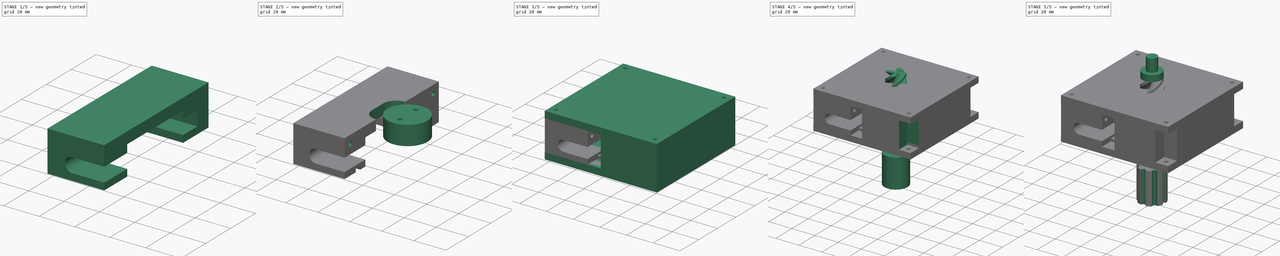
[diagram: build sequence overview — one tinted view per stage of 5, left to right]
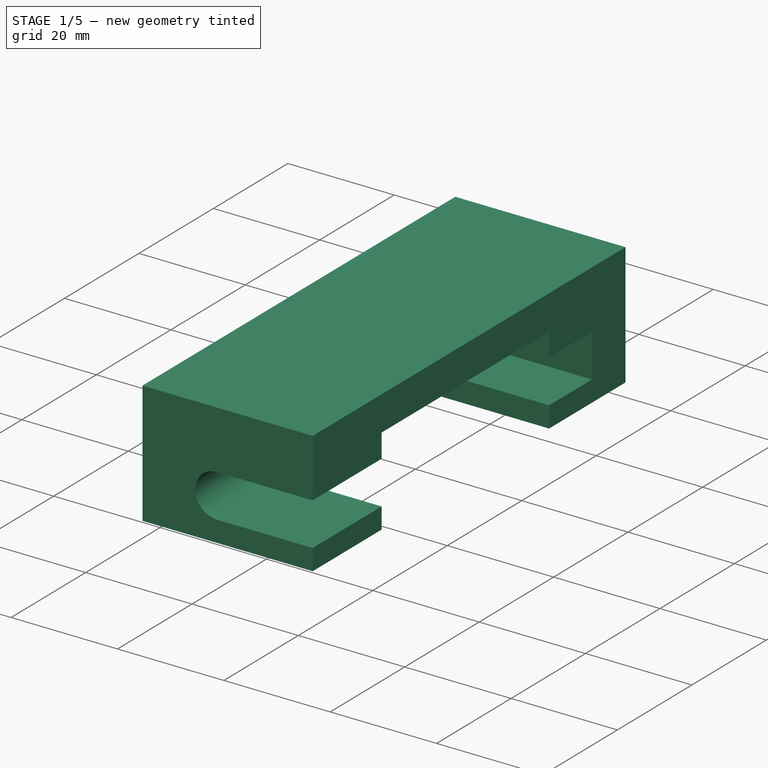
[diagram: stage 1 of 5 — iso view after this stage's code; geometry added in this stage tinted green]
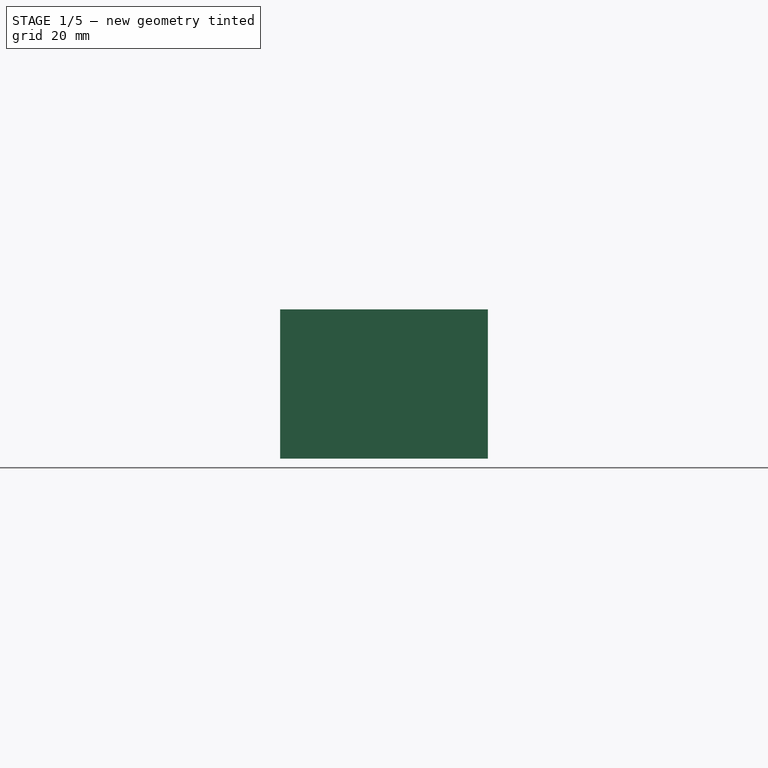
[diagram: stage 1 of 5 — front view after this stage's code; geometry added in this stage tinted green]
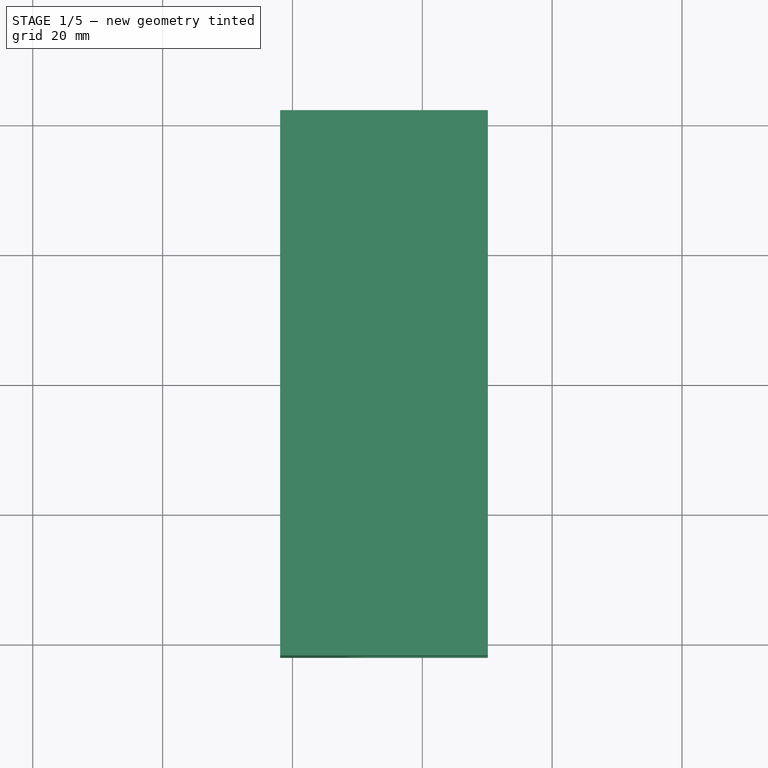
[diagram: stage 1 of 5 — top view after this stage's code; geometry added in this stage tinted green]
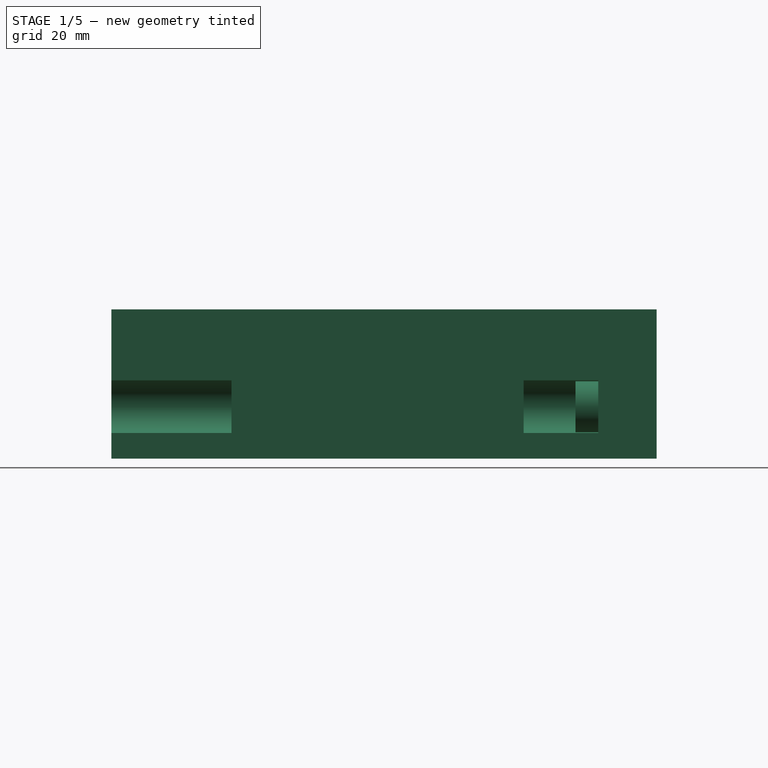
[diagram: stage 1 of 5 — right view after this stage's code; geometry added in this stage tinted green]
FCSTD DOCUMENT  (FreeCAD 1.0R38642 (Git))
Label: Rotary Stage v2
License: All rights reserved
LicenseURL: https://en.wikipedia.org/wiki/All_rights_reserved
objects: Sketcher::SketchObject×36, PartDesign::Pocket×18, PartDesign::Pad×18, PartDesign::Body×7, PartDesign::ShapeBinder×5, PartDesign::Plane×5, PartDesign::FeaturePython×2, PartDesign::Chamfer×2
note: 207 computed .brp shape members not serialized (recipe doc carries the construction recipe); baked Part::Feature solids carry a one-line shape summary decoded from their .brp

FEATURE [PartDesign::ShapeBinder] CopyPad003
  Placement = pos=(0.000224449,4.55156e-05,5.00046) rot=(-0.198743,0.980052,-4e-06;4.6e-05rad)
  TraceSupport = false
FEATURE [PartDesign::Plane] DatumPlane002
  AttachmentSupport = -> [CopyPad003]
  Length = 78.4704
  MapMode = 5
  Placement = pos=(0.000224449,42,5.00008) rot=(1.6e-05,0.70711,0.707104;3.14162rad)
  ResizeMode = 0
  Width = 61.5716
FEATURE [Sketcher::SketchObject] Sketch014
  ArcFitTolerance = 1e-06
  AttachmentSupport = -> [DatumPlane002]
  ExternalGeometry = -> [CopyPad003]
  FullyConstrained = true
  MakeInternals = false
  MapMode = 5
  Placement = pos=(0.000224449,42,5.00008) rot=(1.6e-05,0.70711,0.707104;3.14162rad)
  sketch-geometry (6):
    g0: GeomPoint X=5.8873e-11 Y=12 Z=0
    g1: LineSegment [constr] StartX=5.8873e-11 StartY=12 StartZ=0 EndX=9.9 EndY=12 EndZ=0
    g2: LineSegment StartX=9.9 StartY=12 StartZ=0 EndX=9.9 EndY=-11 EndZ=0
    g3: LineSegment StartX=9.9 StartY=-11 StartZ=0 EndX=41.9 EndY=-11 EndZ=0
    g4: LineSegment StartX=41.9 StartY=-11 StartZ=0 EndX=41.9 EndY=12 EndZ=0
    g5: LineSegment StartX=41.9 StartY=12 StartZ=0 EndX=9.9 EndY=12 EndZ=0
  constraints (15):
    c: Symmetric(g-3,g-3,g0)
    c: Coincident(g1,g0)
    c: PointOnObject(g1,g-3)
    c: Horizontal(g1)
    c: Coincident(g2,g3)
    c: Coincident(g3,g4)
    c: Coincident(g4,g5)
    c: Coincident(g5,g2)
    c: Vertical(g2)
    c: Vertical(g4)
    c: Horizontal(g3)
    c: Horizontal(g5)
    c: Distance(g2,g4) = 32
    c: Distance(g3,g5) = 23
    c: Coincident(g2,g1)
FEATURE [PartDesign::Pad] Pad010
  Direction = (0,1,-9.10228e-06)
  Length = 9
  Length2 = 10
  Placement = pos=(0.000224449,42,5.00008) rot=(1.6e-05,0.70711,0.707104;3.14162rad)
  Profile = -> Sketch014
  ReferenceAxis = -> Sketch014 [N_Axis]
  Refine = true
  Reversed = true
  Suppressed = false
  Type = 0
FEATURE [Sketcher::SketchObject] Sketch015
  ArcFitTolerance = 1e-06
  AttachmentSupport = -> [Pad010]
  ExternalGeometry = -> [Pad010]
  FullyConstrained = true
  MakeInternals = false
  MapMode = 5
  Placement = pos=(0.000224449,33,5.00016) rot=(1.6e-05,-0.707104,0.70711;3.14156rad)
  sketch-geometry (12):
    g0: LineSegment [constr] StartX=41.9 StartY=11 StartZ=0 EndX=27.9 EndY=11 EndZ=0
    g1: LineSegment [constr] StartX=41.9 StartY=11 StartZ=0 EndX=41.9 EndY=3 EndZ=0
    g2: LineSegment [constr] StartX=41.9 StartY=3 StartZ=0 EndX=27.9 EndY=3 EndZ=0
    g3: Circle [constr] CenterX=27.9 CenterY=3 CenterZ=0 NormalX=0 NormalY=0 NormalZ=1 AngleXU=0 Radius=4.05
    g4: LineSegment StartX=41.9 StartY=11 StartZ=0 EndX=9.9 EndY=11 EndZ=0
    g5: LineSegment StartX=41.9 StartY=11 StartZ=0 EndX=41.9 EndY=-12 EndZ=0
    g6: LineSegment StartX=41.9 StartY=-12 StartZ=0 EndX=9.9 EndY=-12 EndZ=0
    g7: LineSegment StartX=27.9 StartY=7.05 StartZ=0 EndX=9.9 EndY=7.05 EndZ=0
    g8: LineSegment StartX=9.9 StartY=-1.05 StartZ=0 EndX=27.9 EndY=-1.05 EndZ=0
    g9: LineSegment StartX=9.9 StartY=7.05 StartZ=0 EndX=9.9 EndY=11 EndZ=0
    g10: LineSegment StartX=9.9 StartY=-1.05 StartZ=0 EndX=9.9 EndY=-12 EndZ=0
    g11: ArcOfCircle CenterX=27.9 CenterY=3 CenterZ=0 NormalX=0 NormalY=0 NormalZ=1 AngleXU=0 Radius=4.05 StartAngle=4.71239 EndAngle=7.85398
  constraints (30):
    c: Distance(g0) = 14
    c: Coincident(g0,g-4)
    c: PointOnObject(g0,g-3)
    c: Distance(g1) = 8
    c: Coincident(g1,g0)
    c: PointOnObject(g1,g-4)
    c: Distance(g2) = 14
    c: Coincident(g2,g1)
    c: Horizontal(g2)
    c: Diameter(g3) = 8.1
    c: Coincident(g3,g2)
    c: Coincident(g4,g0)
    c: Coincident(g4,g-3)
    c: Coincident(g5,g0)
    c: Coincident(g5,g-4)
    c: Coincident(g6,g5)
    c: Coincident(g6,g-6)
    c: PointOnObject(g7,g-5)
    c: Horizontal(g7)
    c: Tangent(g7,g3) = -1.5708
    c: PointOnObject(g8,g-5)
    c: Horizontal(g8)
    c: Tangent(g8,g3) = -1.5708
    c: Coincident(g9,g7)
    c: Coincident(g9,g4)
    c: Coincident(g10,g8)
    c: Coincident(g10,g6)
    c: Coincident(g11,g7)
    c: Coincident(g11,g8)
    c: Tangent(g3,g11)
FEATURE [PartDesign::Pad] Pad011
  BaseFeature = -> Pad010
  Direction = (1e-16,-1,9.10228e-06)
  Length = 11.5
  Length2 = 10
  Placement = pos=(0.000224449,42,5.00008) rot=(1.6e-05,0.70711,0.707104;3.14162rad)
  Profile = -> Sketch015
  ReferenceAxis = -> Sketch015 [N_Axis]
  Refine = true
  Suppressed = false
  Type = 0
FEATURE [Sketcher::SketchObject] Sketch016
  ArcFitTolerance = 1e-06
  AttachmentSupport = -> [Pad011]
  ExternalGeometry = -> [Pad011]
  FullyConstrained = true
  MakeInternals = false
  MapMode = 5
  Placement = pos=(0.000224449,21.5,5.00026) rot=(1.6e-05,-0.707104,0.70711;3.14156rad)
  sketch-geometry (4):
    g0: LineSegment StartX=41.9 StartY=11 StartZ=0 EndX=35.9 EndY=11 EndZ=0
    g1: LineSegment StartX=35.9 StartY=11 StartZ=0 EndX=35.9 EndY=-12 EndZ=0
    g2: LineSegment StartX=35.9 StartY=-12 StartZ=0 EndX=41.9 EndY=-12 EndZ=0
    g3: LineSegment StartX=41.9 StartY=-12 StartZ=0 EndX=41.9 EndY=11 EndZ=0
  constraints (11):
    c: Coincident(g0,g1)
    c: Coincident(g1,g2)
    c: Coincident(g2,g3)
    c: Coincident(g3,g0)
    c: Horizontal(g0)
    c: Horizontal(g2)
    c: Vertical(g1)
    c: Vertical(g3)
    c: Distance(g1,g3) = 6
    c: Coincident(g0,g-4)
    c: PointOnObject(g1,g-5)
FEATURE [PartDesign::Pad] Pad012
  BaseFeature = -> Pad011
  Direction = (1e-16,-1,9.10228e-06)
  Length = 45
  Length2 = 10
  Placement = pos=(0.000224449,42,5.00008) rot=(1.6e-05,0.70711,0.707104;3.14162rad)
  Profile = -> Sketch016
  ReferenceAxis = -> Sketch016 [N_Axis]
  Refine = true
  Suppressed = false
  Type = 0
FEATURE [Sketcher::SketchObject] Sketch017
  ArcFitTolerance = 1e-06
  AttachmentSupport = -> [Pad012]
  ExternalGeometry = -> [Pad012]
  FullyConstrained = true
  MakeInternals = false
  MapMode = 5
  Placement = pos=(0.000224449,21.5,5.00026) rot=(1.6e-05,-0.707104,0.70711;3.14156rad)
  sketch-geometry (4):
    g0: LineSegment StartX=9.9 StartY=-12 StartZ=0 EndX=35.9 EndY=-12 EndZ=0
    g1: LineSegment StartX=35.9 StartY=-12 StartZ=0 EndX=35.9 EndY=-5.5 EndZ=0
    g2: LineSegment StartX=35.9 StartY=-5.5 StartZ=0 EndX=9.9 EndY=-5.5 EndZ=0
    g3: LineSegment StartX=9.9 StartY=-5.5 StartZ=0 EndX=9.9 EndY=-12 EndZ=0
  constraints (11):
    c: Coincident(g0,g1)
    c: Coincident(g1,g2)
    c: Coincident(g2,g3)
    c: Coincident(g3,g0)
    c: Horizontal(g0)
    c: Horizontal(g2)
    c: Vertical(g1)
    c: Vertical(g3)
    c: Distance(g0,g2) = 6.5
    c: Coincident(g0,g-4)
    c: PointOnObject(g1,g-5)
FEATURE [PartDesign::Pad] Pad013
  BaseFeature = -> Pad012
  Direction = (1e-16,-1,9.10228e-06)
  Length = 45
  Length2 = 10
  Placement = pos=(0.000224449,42,5.00008) rot=(1.6e-05,0.70711,0.707104;3.14162rad)
  Profile = -> Sketch017
  ReferenceAxis = -> Sketch017 [N_Axis]
  Refine = true
  Suppressed = false
  Type = 0
FEATURE [Sketcher::SketchObject] Sketch018
  ArcFitTolerance = 1e-06
  AttachmentSupport = -> [Pad013]
  ExternalGeometry = -> [Pad013]
  FullyConstrained = true
  MakeInternals = false
  MapMode = 5
  Placement = pos=(0.000224449,-23.5,5.00067) rot=(1.6e-05,-0.707104,0.70711;3.14156rad)
  sketch-geometry (16):
    g0: LineSegment [constr] StartX=41.9 StartY=11 StartZ=0 EndX=27.9 EndY=11 EndZ=0
    g1: LineSegment [constr] StartX=41.9 StartY=11 StartZ=0 EndX=41.9 EndY=3 EndZ=0
    g2: LineSegment [constr] StartX=41.9 StartY=11 StartZ=0 EndX=27.9 EndY=11 EndZ=0
    g3: LineSegment [constr] StartX=27.9 StartY=11 StartZ=0 EndX=27.9 EndY=3 EndZ=0
    g4: LineSegment [constr] StartX=27.9 StartY=3 StartZ=0 EndX=41.9 EndY=3 EndZ=0
    g5: LineSegment [constr] StartX=41.9 StartY=3 StartZ=0 EndX=41.9 EndY=11 EndZ=0
    g6: Circle [constr] CenterX=27.9 CenterY=3 CenterZ=0 NormalX=0 NormalY=0 NormalZ=1 AngleXU=0 Radius=4.05
    g7: LineSegment StartX=41.9 StartY=11 StartZ=0 EndX=9.9 EndY=11 EndZ=0
    g8: LineSegment StartX=41.9 StartY=11 StartZ=0 EndX=41.9 EndY=-12 EndZ=0
    g9: LineSegment StartX=41.9 StartY=-12 StartZ=0 EndX=9.9 EndY=-12 EndZ=0
    g10: LineSegment [constr] StartX=9.9 StartY=11 StartZ=0 EndX=9.9 EndY=-12 EndZ=0
    g11: LineSegment StartX=27.9 StartY=7.05 StartZ=0 EndX=9.9 EndY=7.05 EndZ=0
    g12: LineSegment StartX=27.9 StartY=-1.05 StartZ=0 EndX=9.9 EndY=-1.05 EndZ=0
    g13: ArcOfCircle CenterX=27.9 CenterY=3 CenterZ=0 NormalX=0 NormalY=0 NormalZ=1 AngleXU=0 Radius=4.05 StartAngle=4.71239 EndAngle=7.85398
    g14: LineSegment StartX=9.9 StartY=-1.05 StartZ=0 EndX=9.9 EndY=-12 EndZ=0
    g15: LineSegment StartX=9.9 StartY=11 StartZ=0 EndX=9.9 EndY=7.05 EndZ=0
  constraints (41):
    c: Distance(g0) = 14
    c: Coincident(g0,g-5)
    c: Horizontal(g0)
    c: Distance(g1) = 8
    c: Coincident(g1,g0)
    c: PointOnObject(g1,g-3)
    c: Coincident(g2,g3)
    c: Coincident(g3,g4)
    c: Coincident(g4,g5)
    c: Coincident(g5,g2)
    c: Horizontal(g2)
    c: Horizontal(g4)
    c: Vertical(g3)
    c: Vertical(g5)
    c: Distance(g3,g5) = 14
    c: Distance(g2,g4) = 8
    c: Coincident(g2,g0)
    c: Diameter(g6) = 8.1
    c: Coincident(g6,g3)
    c: Distance(g7) = 32
    c: Coincident(g7,g0)
    c: Horizontal(g7)
    c: Coincident(g8,g0)
    c: Coincident(g8,g-4)
    c: Coincident(g9,g8)
    c: Coincident(g9,g-4)
    c: Coincident(g10,g7)
    c: Coincident(g10,g9)
    c: Tangent(g11,g6) = -1.5708
    c: PointOnObject(g11,g10)
    c: Horizontal(g11)
    c: Tangent(g12,g6) = 1.5708
    c: PointOnObject(g12,g10)
    c: Perpendicular(g10,g12)
    c: Coincident(g13,g11)
    c: Coincident(g13,g12)
    c: Tangent(g13,g6)
    c: Coincident(g14,g12)
    c: Coincident(g14,g9)
    c: Coincident(g15,g7)
    c: Coincident(g15,g11)
FEATURE [PartDesign::Pad] Pad014
  BaseFeature = -> Pad013
  Direction = (2e-16,-1,9.10228e-06)
  Length = 18.5
  Length2 = 10
  Placement = pos=(0.000224449,42,5.00008) rot=(1.6e-05,0.70711,0.707104;3.14162rad)
  Profile = -> Sketch018
  ReferenceAxis = -> Sketch018 [N_Axis]
  Refine = true
  Suppressed = false
  Type = 0
FEATURE [PartDesign::Body] Body004  label="Midplate B"
  AllowCompound = false
  Group = -> [DatumPlane002,CopyPad003,Sketch014,Pad010,Sketch015,Pad011,Sketch016,Pad012,Sketch017,Pad013,Sketch018,Pad014,Sketch019,Pocket004,Sketch020,Pocket005,Sketch023,Pocket008,Sketch031,Pocket015,Sketch032,Pocket016,Sketch033,Pocket017]
  Origin = -> Origin004
  Tip = -> Pocket017
FEATURE [PartDesign::ShapeBinder] CopyPocket017
  Placement = pos=(0.000224449,42,5.00008) rot=(1.6e-05,0.70711,0.707104;3.14162rad)
  TraceSupport = false
FEATURE [PartDesign::Plane] DatumPlane004
  AttachmentSupport = -> [CopyPocket017]
  Length = 67.4886
  MapMode = 5
  Placement = pos=(0.000224449,33,5.00016) rot=(1.6e-05,-0.707104,0.70711;3.14156rad)
  ResizeMode = 0
  Width = 60.6643
FEATURE [Sketcher::SketchObject] Sketch034
  ArcFitTolerance = 1e-06
  AttachmentSupport = -> [DatumPlane004]
  ExternalGeometry = -> [CopyPocket017]
  FullyConstrained = true
  MakeInternals = false
  MapMode = 5
  Placement = pos=(0.000224449,33,5.00016) rot=(1.6e-05,-0.707104,0.70711;3.14156rad)
  sketch-geometry (2):
    g0: Circle CenterX=27.9 CenterY=3 CenterZ=0 NormalX=0 NormalY=0 NormalZ=1 AngleXU=0 Radius=1.75
    g1: Circle CenterX=27.9 CenterY=3 CenterZ=0 NormalX=0 NormalY=0 NormalZ=1 AngleXU=0 Radius=3.925
  constraints (4):
    c: Diameter(g0) = 3.5
    c: Coincident(g0,g-3)
    c: Diameter(g1) = 7.85
    c: Coincident(g1,g0)
FEATURE [PartDesign::Pad] Pad016
  Direction = (0,-1,9.10228e-06)
  Length = 1.5
  Length2 = 10
  Placement = pos=(0.000224449,33,5.00016) rot=(1.6e-05,-0.707104,0.70711;3.14156rad)
  Profile = -> Sketch034
  ReferenceAxis = -> Sketch034 [N_Axis]
  Refine = true
  Suppressed = false
  Type = 0
FEATURE [Sketcher::SketchObject] Sketch035
  ArcFitTolerance = 1e-06
  AttachmentSupport = -> [Pad016]
  ExternalGeometry = -> [Pad016]
  FullyConstrained = true
  MakeInternals = false
  MapMode = 5
  Placement = pos=(0.000224449,31.5,5.00017) rot=(1.6e-05,-0.707104,0.70711;3.14156rad)
  sketch-geometry (1):
    g0: Circle CenterX=27.9 CenterY=3 CenterZ=0 NormalX=0 NormalY=0 NormalZ=1 AngleXU=0 Radius=3.925
  constraints (2):
    c: Coincident(g0,g-3)
    c: Equal(g0,g-3)
FEATURE [PartDesign::Pad] Pad017
  BaseFeature = -> Pad016
  Direction = (-1e-16,-1,9.10228e-06)
  Length = 2
  Length2 = 10
  Placement = pos=(0.000224449,33,5.00016) rot=(1.6e-05,-0.707104,0.70711;3.14156rad)
  Profile = -> Sketch035
  ReferenceAxis = -> Sketch035 [N_Axis]
  Refine = true
  Suppressed = false
  Type = 0
FEATURE [PartDesign::Chamfer] Chamfer001
  Angle = 45
  Base = -> Pad017 [Edge2]
  BaseFeature = -> Pad017
  ChamferType = 0
  FlipDirection = false
  Placement = pos=(0.000224449,33,5.00016) rot=(1.6e-05,-0.707104,0.70711;3.14156rad)
  Refine = true
  Size = 0.3
  Size2 = 1
  SupportTransform = false
  Suppressed = false
  UseAllEdges = false
FEATURE [PartDesign::Body] Body006  label="Worm Gear Spacer"
  AllowCompound = false
  Group = -> [DatumPlane004,CopyPocket017,Sketch034,Pad016,Sketch035,Pad017,Chamfer001]
  Origin = -> Origin006
  Tip = -> Chamfer001
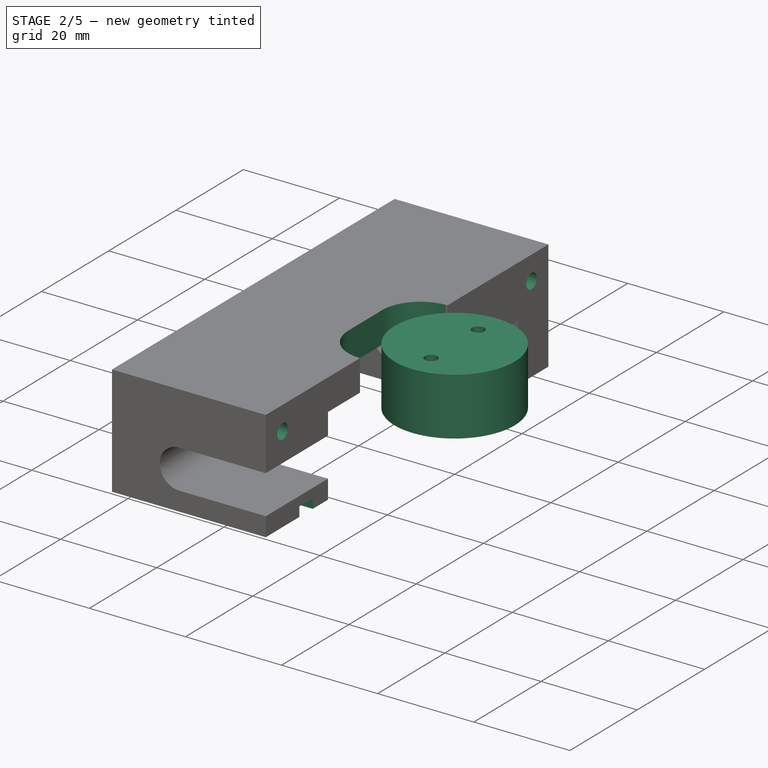
[diagram: stage 2 of 5 — iso view after this stage's code; geometry added in this stage tinted green]
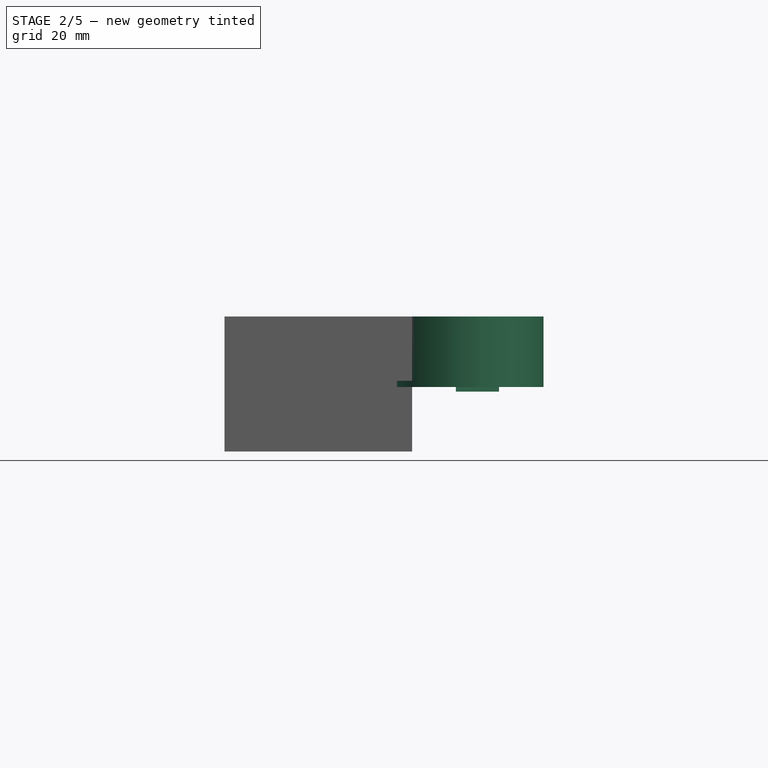
[diagram: stage 2 of 5 — front view after this stage's code; geometry added in this stage tinted green]
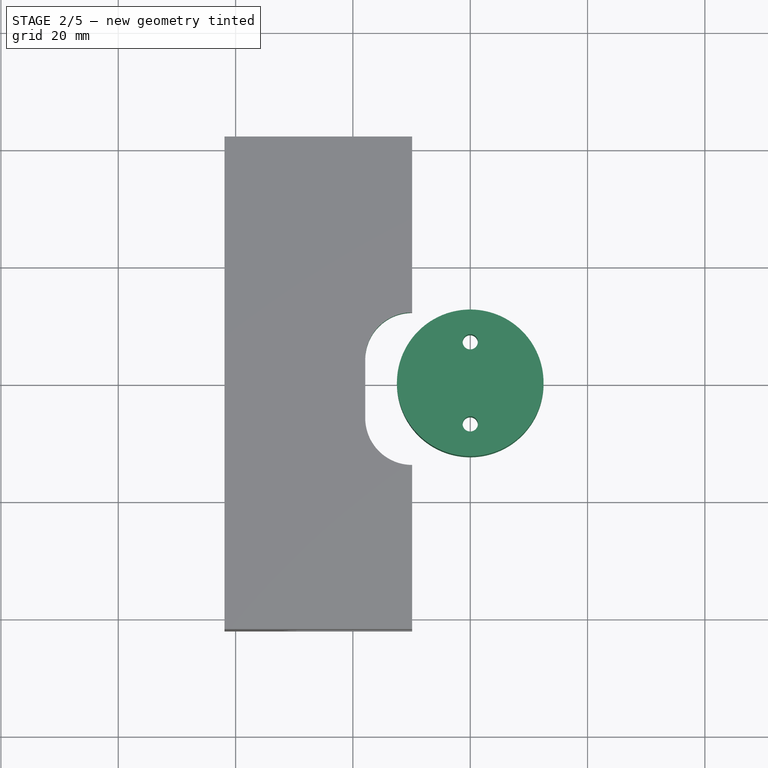
[diagram: stage 2 of 5 — top view after this stage's code; geometry added in this stage tinted green]
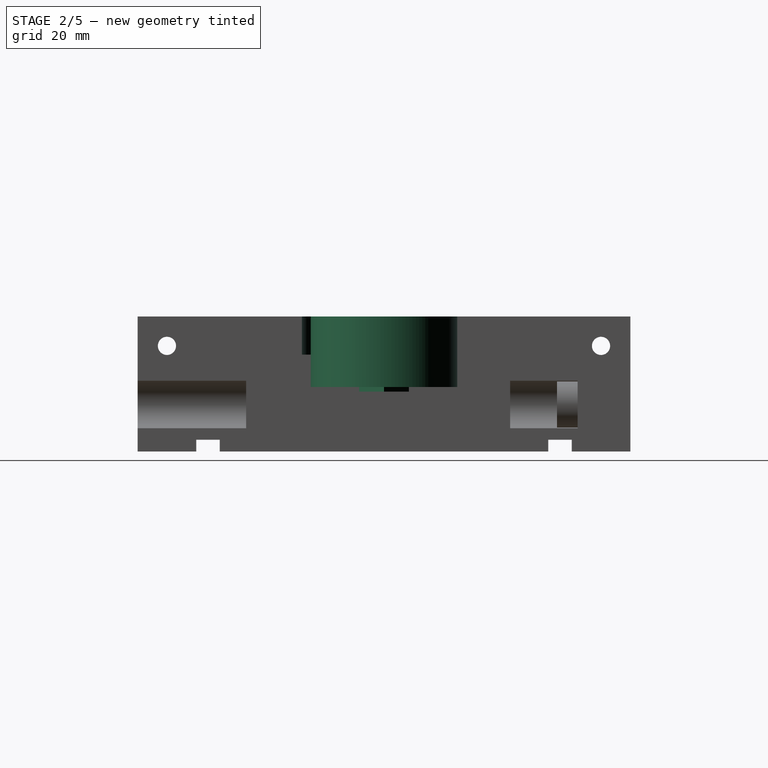
[diagram: stage 2 of 5 — right view after this stage's code; geometry added in this stage tinted green]
FEATURE [PartDesign::Body] Body  label="Cycloid Gear"
  AllowCompound = false
  Group = -> [CycloidGear,Sketch,Pocket,Chamfer,Sketch001,Pocket001,Sketch002,Pocket002]
  Origin = -> Origin
  Tip = -> Pocket002
FEATURE [PartDesign::ShapeBinder] CopyPocket002
  TraceSupport = false
FEATURE [PartDesign::Plane] DatumPlane
  AttachmentSupport = -> [CopyPocket002]
  Length = 100.803
  MapMode = 5
  Placement = pos=(0.000224449,4.55156e-05,5.00046) rot=(-0.198743,0.980052,-4e-06;4.6e-05rad)
  ResizeMode = 0
  Width = 100.801
FEATURE [Sketcher::SketchObject] Sketch003
  ArcFitTolerance = 1e-06
  AttachmentSupport = -> [DatumPlane]
  ExternalGeometry = -> [CopyPocket002]
  FullyConstrained = true
  MakeInternals = false
  MapMode = 5
  Placement = pos=(0.000224449,4.55156e-05,5.00046) rot=(-0.198743,0.980052,-4e-06;4.6e-05rad)
  sketch-geometry (3):
    g0: Circle CenterX=0 CenterY=7 CenterZ=0 NormalX=0 NormalY=0 NormalZ=1 AngleXU=0 Radius=1.3
    g1: Circle CenterX=0 CenterY=-7 CenterZ=0 NormalX=0 NormalY=0 NormalZ=1 AngleXU=0 Radius=1.3
    g2: Circle CenterX=0 CenterY=0 CenterZ=0 NormalX=0 NormalY=0 NormalZ=1 AngleXU=0 Radius=12.5
  constraints (6):
    c: Diameter(g0) = 2.6
    c: Coincident(g0,g-4)
    c: Diameter(g1) = 2.6
    c: Coincident(g1,g-5)
    c: Diameter(g2) = 25
    c: Coincident(g2,g-1)
FEATURE [PartDesign::Pad] Pad
  Direction = (4.48856e-05,9.10228e-06,1)
  Length = 12
  Length2 = 10
  Placement = pos=(0.000224449,4.55156e-05,5.00046) rot=(-0.198743,0.980052,-4e-06;4.6e-05rad)
  Profile = -> Sketch003
  ReferenceAxis = -> Sketch003 [N_Axis]
  Refine = true
  Suppressed = false
  Type = 0
FEATURE [Sketcher::SketchObject] Sketch004
  ArcFitTolerance = 1e-06
  AttachmentSupport = -> [CopyPocket002]
  FullyConstrained = true
  MakeInternals = false
  MapMode = 5
  Placement = pos=(0.000224449,4.55156e-05,5.00046) rot=(-0.198743,0.980052,-4e-06;4.6e-05rad)
  sketch-geometry (4):
    g0: LineSegment StartX=4.9 StartY=0 StartZ=0 EndX=-2.45 EndY=4.24352 EndZ=0
    g1: LineSegment StartX=-2.45 StartY=4.24352 StartZ=0 EndX=-2.45 EndY=-4.24352 EndZ=0
    g2: LineSegment StartX=-2.45 StartY=-4.24352 StartZ=0 EndX=4.9 EndY=0 EndZ=0
    g3: Circle [constr] CenterX=0 CenterY=0 CenterZ=0 NormalX=0 NormalY=0 NormalZ=1 AngleXU=0 Radius=4.9
  constraints (11):
    c: Coincident(g0,g1)
    c: Coincident(g1,g2)
    c: Coincident(g2,g0)
    c: Equal(g0,g1)
    c: Equal(g0,g2)
    c: PointOnObject(g0,g3)
    c: PointOnObject(g1,g3)
    c: PointOnObject(g2,g3)
    c: Radius(g3) = 4.9
    c: Coincident(g3,g-1)
    c: PointOnObject(g2,g-1)
FEATURE [PartDesign::Pad] Pad001
  BaseFeature = -> Pad
  Direction = (4.48856e-05,9.10228e-06,1)
  Length = 0.8
  Length2 = 10
  Placement = pos=(0.000224449,4.55156e-05,5.00046) rot=(-0.198743,0.980052,-4e-06;4.6e-05rad)
  Profile = -> Sketch004
  ReferenceAxis = -> Sketch004 [N_Axis]
  Refine = true
  Reversed = true
  Suppressed = false
  Type = 0
FEATURE [Sketcher::SketchObject] Sketch019
  ArcFitTolerance = 1e-06
  AttachmentSupport = -> [Pad014]
  ExternalGeometry = -> [Pad014]
  FullyConstrained = true
  MakeInternals = false
  MapMode = 5
  Placement = pos=(0.00047132,42.0001,10.5001) rot=(0,1,-5e-06;3.14164rad)
  sketch-geometry (6):
    g0: GeomPoint X=9.9 Y=-43 Z=0
    g1: LineSegment [constr] StartX=9.9 StartY=-43 StartZ=0 EndX=9.9 EndY=-38 EndZ=0
    g2: ArcOfCircle CenterX=9.9 CenterY=-38 CenterZ=0 NormalX=0 NormalY=0 NormalZ=1 AngleXU=0 Radius=8 StartAngle=3.8e-14 EndAngle=3.14159
    g3: ArcOfCircle CenterX=9.9 CenterY=-48 CenterZ=0 NormalX=0 NormalY=0 NormalZ=1 AngleXU=0 Radius=8 StartAngle=3.14159 EndAngle=6.28319
    g4: LineSegment StartX=17.9 StartY=-38 StartZ=0 EndX=17.9 EndY=-48 EndZ=0
    g5: LineSegment StartX=1.9 StartY=-38 StartZ=0 EndX=1.9 EndY=-48 EndZ=0
  constraints (13):
    c: Symmetric(g-3,g-3,g0)
    c: Distance(g1) = 5
    c: Coincident(g1,g0)
    c: PointOnObject(g1,g-3)
    c: Tangent(g2,g4) = 1.5708
    c: Tangent(g2,g5) = -1.5708
    c: Tangent(g3,g4) = 1.5708
    c: Tangent(g3,g5) = -1.5708
    c: Equal(g2,g3)
    c: Vertical(g5)
    c: Distance(g2,g3) = 10
    c: Radius(g2) = 8
    c: Coincident(g2,g1)
FEATURE [PartDesign::Pocket] Pocket004
  BaseFeature = -> Pad014
  Direction = (4.48856e-05,9.10228e-06,1)
  Length = 7
  Length2 = 5
  Placement = pos=(0.000224449,42,5.00008) rot=(1.6e-05,0.70711,0.707104;3.14162rad)
  Profile = -> Sketch019
  ReferenceAxis = -> Sketch019 [N_Axis]
  Refine = true
  Suppressed = false
  Type = 0
FEATURE [Sketcher::SketchObject] Sketch020
  ArcFitTolerance = 1e-06
  AttachmentSupport = -> [Pocket004]
  ExternalGeometry = -> [Pocket004]
  FullyConstrained = true
  MakeInternals = false
  MapMode = 5
  Placement = pos=(-41.8998,42,5.00196) rot=(-5e-06,-1,5e-06;1.57075rad)
  sketch-geometry (10):
    g0: LineSegment [constr] StartX=12 StartY=-84 StartZ=0 EndX=12 EndY=-79 EndZ=0
    g1: LineSegment [constr] StartX=12 StartY=-79 StartZ=0 EndX=7 EndY=-79 EndZ=0
    g2: LineSegment [constr] StartX=7 StartY=-79 StartZ=0 EndX=7 EndY=-84 EndZ=0
    g3: LineSegment [constr] StartX=7 StartY=-84 StartZ=0 EndX=12 EndY=-84 EndZ=0
    g4: LineSegment [constr] StartX=12 StartY=0 StartZ=0 EndX=7 EndY=0 EndZ=0
    g5: LineSegment [constr] StartX=7 StartY=0 StartZ=0 EndX=7 EndY=-5 EndZ=0
    g6: LineSegment [constr] StartX=7 StartY=-5 StartZ=0 EndX=12 EndY=-5 EndZ=0
    g7: LineSegment [constr] StartX=12 StartY=-5 StartZ=0 EndX=12 EndY=0 EndZ=0
    g8: Circle CenterX=7 CenterY=-5 CenterZ=0 NormalX=0 NormalY=0 NormalZ=1 AngleXU=0 Radius=1.55
    g9: Circle CenterX=7 CenterY=-79 CenterZ=0 NormalX=0 NormalY=0 NormalZ=1 AngleXU=0 Radius=1.55
  constraints (26):
    c: Coincident(g0,g1)
    c: Coincident(g1,g2)
    c: Coincident(g2,g3)
    c: Coincident(g3,g0)
    c: Vertical(g0)
    c: Vertical(g2)
    c: Horizontal(g1)
    c: Horizontal(g3)
    c: Distance(g0,g2) = 5
    c: Distance(g1,g3) = 5
    c: Coincident(g0,g-5)
    c: Coincident(g4,g5)
    c: Coincident(g5,g6)
    c: Coincident(g6,g7)
    c: Coincident(g7,g4)
    c: Horizontal(g4)
    c: Horizontal(g6)
    c: Vertical(g5)
    c: Vertical(g7)
    c: Distance(g5,g7) = 5
    c: Distance(g4,g6) = 5
    c: Coincident(g4,g-5)
    c: Diameter(g8) = 3.1
    c: Coincident(g8,g5)
    c: Diameter(g9) = 3.1
    c: Coincident(g9,g1)
FEATURE [PartDesign::Pocket] Pocket005
  BaseFeature = -> Pocket004
  Direction = (1,-4.08561e-10,-4.48856e-05)
  Length = 5
  Length2 = 5
  Placement = pos=(0.000224449,42,5.00008) rot=(1.6e-05,0.70711,0.707104;3.14162rad)
  Profile = -> Sketch020
  ReferenceAxis = -> Sketch020 [N_Axis]
  Refine = true
  Suppressed = false
  Type = 1
FEATURE [Sketcher::SketchObject] Sketch023
  ArcFitTolerance = 1e-06
  AttachmentSupport = -> [Pocket005]
  ExternalGeometry = -> [Pocket005]
  FullyConstrained = true
  MakeInternals = false
  MapMode = 5
  Placement = pos=(-0.000269293,41.9999,-5.99992) rot=(0,1,-5e-06;3.14164rad)
  sketch-geometry (10):
    g0: LineSegment [constr] StartX=41.9 StartY=-84 StartZ=0 EndX=41.9 EndY=-74 EndZ=0
    g1: LineSegment [constr] StartX=41.9 StartY=0 StartZ=0 EndX=41.9 EndY=-10 EndZ=0
    g2: LineSegment StartX=41.9 StartY=-10 StartZ=0 EndX=9.9 EndY=-10 EndZ=0
    g3: LineSegment StartX=9.9 StartY=-10 StartZ=0 EndX=9.9 EndY=-14 EndZ=0
    g4: LineSegment StartX=9.9 StartY=-14 StartZ=0 EndX=41.9 EndY=-14 EndZ=0
    g5: LineSegment StartX=41.9 StartY=-14 StartZ=0 EndX=41.9 EndY=-10 EndZ=0
    g6: LineSegment StartX=41.9 StartY=-74 StartZ=0 EndX=41.9 EndY=-70 EndZ=0
    g7: LineSegment StartX=41.9 StartY=-70 StartZ=0 EndX=9.9 EndY=-70 EndZ=0
    g8: LineSegment StartX=9.9 StartY=-70 StartZ=0 EndX=9.9 EndY=-74 EndZ=0
    g9: LineSegment StartX=9.9 StartY=-74 StartZ=0 EndX=41.9 EndY=-74 EndZ=0
  constraints (28):
    c: Distance(g0) = 10
    c: Coincident(g0,g-3)
    c: PointOnObject(g0,g-3)
    c: Distance(g1) = 10
    c: Coincident(g1,g-3)
    c: PointOnObject(g1,g-3)
    c: Coincident(g2,g3)
    c: Coincident(g3,g4)
    c: Coincident(g4,g5)
    c: Coincident(g5,g2)
    c: Horizontal(g2)
    c: Horizontal(g4)
    c: Vertical(g3)
    c: Vertical(g5)
    c: Distance(g2,g4) = 4
    c: Coincident(g2,g1)
    c: PointOnObject(g3,g-4)
    c: Coincident(g6,g7)
    c: Coincident(g7,g8)
    c: Coincident(g8,g9)
    c: Coincident(g9,g6)
    c: Vertical(g6)
    c: Vertical(g8)
    c: Horizontal(g7)
    c: Horizontal(g9)
    c: Distance(g7,g9) = 4
    c: Coincident(g6,g0)
    c: PointOnObject(g7,g-5)
FEATURE [PartDesign::Pocket] Pocket008
  BaseFeature = -> Pocket005
  Direction = (4.48856e-05,9.10228e-06,1)
  Length = 2
  Length2 = 5
  Placement = pos=(0.000224449,42,5.00008) rot=(1.6e-05,0.70711,0.707104;3.14162rad)
  Profile = -> Sketch023
  ReferenceAxis = -> Sketch023 [N_Axis]
  Refine = true
  Suppressed = false
  Type = 0
FEATURE [PartDesign::Body] Body002  label="Top Plate"
  AllowCompound = false
  Group = -> [DatumPlane,CopyPocket002,Sketch003,Pad,Sketch004,Pad001,Sketch005,Pad002,Sketch030,Pocket014]
  Origin = -> Origin002
  Tip = -> Pocket014
FEATURE [Sketcher::SketchObject] Sketch031
  ArcFitTolerance = 1e-06
  AttachmentSupport = -> [Pocket008]
  ExternalGeometry = -> [Pocket008]
  FullyConstrained = true
  MakeInternals = false
  MapMode = 5
  Placement = pos=(-41.8998,42,5.00196) rot=(-5e-06,-1,5e-06;1.57075rad)
  sketch-geometry (2):
    g0: Circle CenterX=7 CenterY=-5 CenterZ=0 NormalX=0 NormalY=0 NormalZ=1 AngleXU=0 Radius=3
    g1: Circle CenterX=7 CenterY=-79 CenterZ=0 NormalX=0 NormalY=0 NormalZ=1 AngleXU=0 Radius=3
  constraints (4):
    c: Diameter(g0) = 6
    c: Coincident(g0,g-3)
    c: Diameter(g1) = 6
    c: Coincident(g1,g-4)
FEATURE [PartDesign::Pocket] Pocket015
  BaseFeature = -> Pocket008
  Direction = (1,-4.08562e-10,-4.48856e-05)
  Length = 28
  Length2 = 5
  Placement = pos=(0.000224449,42,5.00008) rot=(1.6e-05,0.70711,0.707104;3.14162rad)
  Profile = -> Sketch031
  ReferenceAxis = -> Sketch031 [N_Axis]
  Refine = true
  Suppressed = false
  Type = 0
FEATURE [Sketcher::SketchObject] Sketch032
  ArcFitTolerance = 1e-06
  AttachmentSupport = -> [Pocket015]
  ExternalGeometry = -> [Pocket015]
  FullyConstrained = true
  MakeInternals = false
  MapMode = 5
  Placement = pos=(0.000224449,33,5.00016) rot=(1.6e-05,-0.707104,0.70711;3.14156rad)
  sketch-geometry (1):
    g0: Circle CenterX=27.9 CenterY=3 CenterZ=0 NormalX=0 NormalY=0 NormalZ=1 AngleXU=0 Radius=1.3
  constraints (2):
    c: Diameter(g0) = 2.6
    c: Coincident(g0,g-3)
FEATURE [PartDesign::Pocket] Pocket016
  BaseFeature = -> Pocket015
  Direction = (0,1,-9.10228e-06)
  Length = 5
  Length2 = 5
  Placement = pos=(0.000224449,42,5.00008) rot=(1.6e-05,0.70711,0.707104;3.14162rad)
  Profile = -> Sketch032
  ReferenceAxis = -> Sketch032 [N_Axis]
  Refine = true
  Suppressed = false
  Type = 1
FEATURE [Sketcher::SketchObject] Sketch033
  ArcFitTolerance = 1e-06
  AttachmentSupport = -> [Pocket016]
  ExternalGeometry = -> [Pocket016]
  FullyConstrained = true
  MakeInternals = false
  MapMode = 5
  Placement = pos=(0.000224449,42,5.00008) rot=(1.6e-05,0.70711,0.707104;3.14162rad)
  sketch-geometry (1):
    g0: Circle CenterX=27.9 CenterY=-3 CenterZ=0 NormalX=0 NormalY=0 NormalZ=1 AngleXU=0 Radius=3
  constraints (2):
    c: Diameter(g0) = 6
    c: Coincident(g0,g-3)
FEATURE [PartDesign::Pocket] Pocket017
  BaseFeature = -> Pocket016
  Direction = (0,-1,9.10228e-06)
  Length = 3.2
  Length2 = 5
  Placement = pos=(0.000224449,42,5.00008) rot=(1.6e-05,0.70711,0.707104;3.14162rad)
  Profile = -> Sketch033
  ReferenceAxis = -> Sketch033 [N_Axis]
  Refine = true
  Suppressed = false
  Type = 0
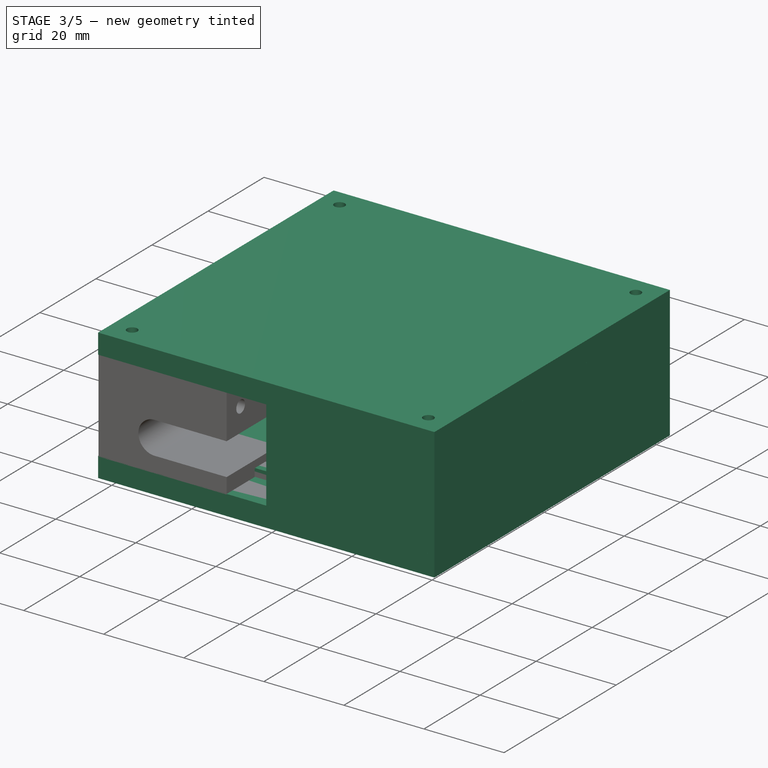
[diagram: stage 3 of 5 — iso view after this stage's code; geometry added in this stage tinted green]
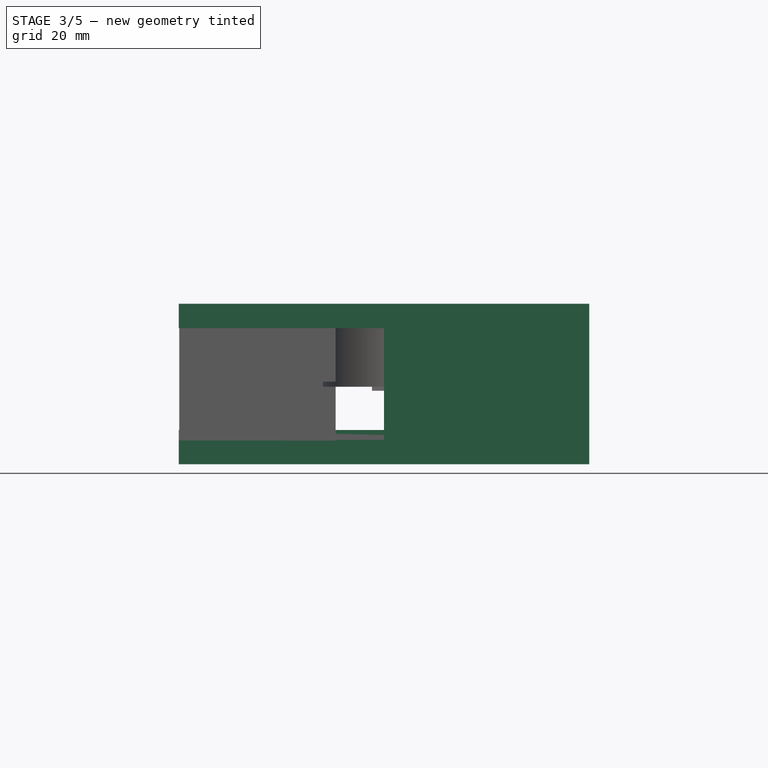
[diagram: stage 3 of 5 — front view after this stage's code; geometry added in this stage tinted green]
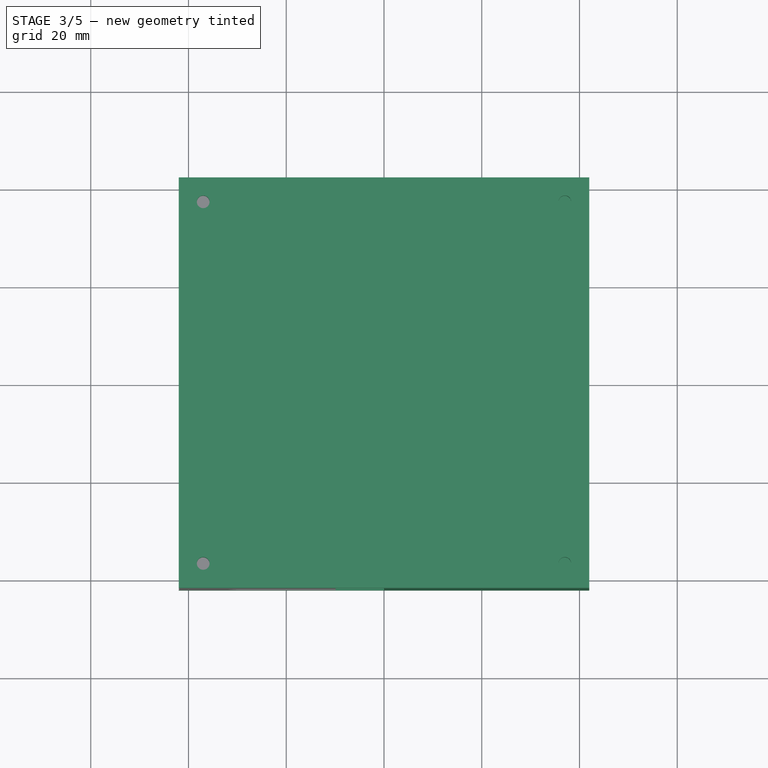
[diagram: stage 3 of 5 — top view after this stage's code; geometry added in this stage tinted green]
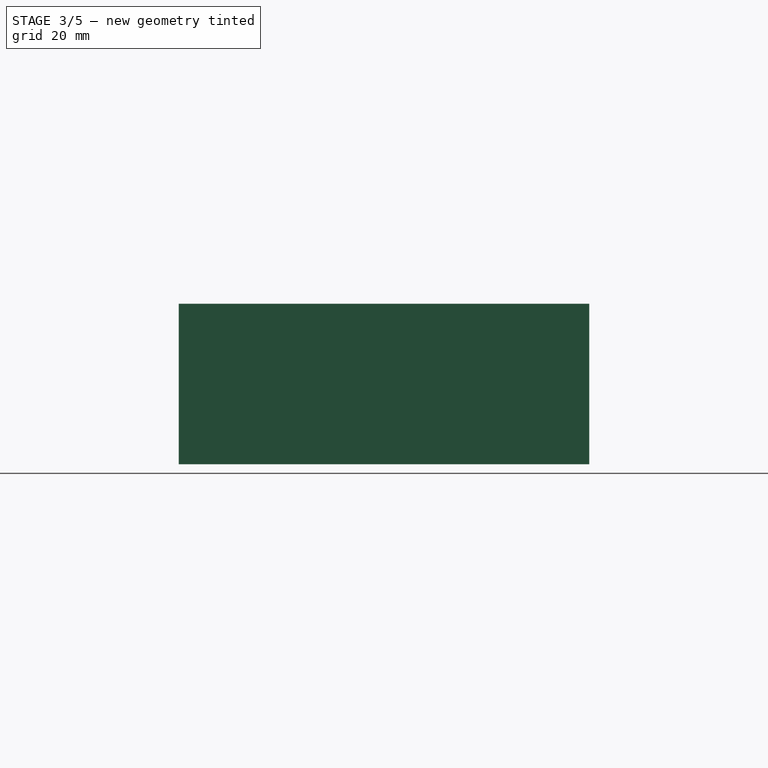
[diagram: stage 3 of 5 — right view after this stage's code; geometry added in this stage tinted green]
FEATURE [Sketcher::SketchObject] Sketch005
  ArcFitTolerance = 1e-06
  AttachmentSupport = -> [Pad001]
  FullyConstrained = true
  MakeInternals = false
  MapMode = 5
  Placement = pos=(0.000763076,0.000154743,17.0005) rot=(-0.198743,0.980052,-4e-06;4.6e-05rad)
  sketch-geometry (5):
    g0: LineSegment StartX=-42 StartY=-42 StartZ=0 EndX=42 EndY=-42 EndZ=0
    g1: LineSegment StartX=42 StartY=-42 StartZ=0 EndX=42 EndY=42 EndZ=0
    g2: LineSegment StartX=42 StartY=42 StartZ=0 EndX=-42 EndY=42 EndZ=0
    g3: LineSegment StartX=-42 StartY=42 StartZ=0 EndX=-42 EndY=-42 EndZ=0
    g4: GeomPoint [constr] X=0 Y=0 Z=0
  constraints (12):
    c: Coincident(g0,g1)
    c: Coincident(g1,g2)
    c: Coincident(g2,g3)
    c: Coincident(g3,g0)
    c: Horizontal(g0)
    c: Horizontal(g2)
    c: Vertical(g1)
    c: Vertical(g3)
    c: Symmetric(g2,g0,g4)
    c: Distance(g1,g3) = 84
    c: Distance(g0,g2) = 84
    c: Coincident(g4,g-1)
FEATURE [PartDesign::Pad] Pad002
  BaseFeature = -> Pad001
  Direction = (4.48856e-05,9.10228e-06,1)
  Length = 5
  Length2 = 10
  Placement = pos=(0.000224449,4.55156e-05,5.00046) rot=(-0.198743,0.980052,-4e-06;4.6e-05rad)
  Profile = -> Sketch005
  ReferenceAxis = -> Sketch005 [N_Axis]
  Refine = true
  Suppressed = false
  Type = 0
FEATURE [PartDesign::Body] Body001  label="Worm Gear Adjustor"
  AllowCompound = false
  Group = -> [WormGear,Sketch006,Pad003,Sketch007,Pad004,Sketch008,Pad005,Sketch009,Pocket003,Sketch010,Pad006,Sketch011,Pad007]
  Origin = -> Origin001
  Placement = pos=(-28,-13.5,2) rot=(1,0,0;4.71239rad)
  Tip = -> Pad007
FEATURE [PartDesign::ShapeBinder] CopyPad002
  Placement = pos=(0.000224449,4.55156e-05,5.00046) rot=(-0.198743,0.980052,-4e-06;4.6e-05rad)
  TraceSupport = false
FEATURE [PartDesign::Plane] DatumPlane001
  AttachmentSupport = -> [CopyPad002]
  Length = 82.0074
  MapMode = 5
  Placement = pos=(0.000763076,0.000154743,17.0005) rot=(1,0,-2.2e-05;3.14158rad)
  ResizeMode = 0
  Width = 99.0051
FEATURE [Sketcher::SketchObject] Sketch012
  ArcFitTolerance = 1e-06
  AttachmentSupport = -> [DatumPlane001]
  ExternalGeometry = -> [CopyPad002]
  FullyConstrained = true
  MakeInternals = false
  MapMode = 5
  Placement = pos=(0.000763076,0.000154743,17.0005) rot=(1,0,-2.2e-05;3.14158rad)
  sketch-geometry (10):
    g0: GeomPoint X=6.8e-15 Y=-42 Z=0
    g1: GeomPoint X=-3.4e-15 Y=42 Z=0
    g2: LineSegment StartX=0 StartY=42 StartZ=0 EndX=42 EndY=42 EndZ=0
    g3: LineSegment StartX=42 StartY=42 StartZ=0 EndX=42 EndY=-42 EndZ=0
    g4: LineSegment StartX=42 StartY=-42 StartZ=0 EndX=7.1e-15 EndY=-42 EndZ=0
    g5: LineSegment StartX=6.8e-15 StartY=-42 StartZ=0 EndX=-4.2e-15 EndY=-12.6 EndZ=0
    g6: LineSegment StartX=-3.4e-15 StartY=42 StartZ=0 EndX=2e-15 EndY=12.6 EndZ=0
    g7: GeomPoint [constr] X=42 Y=1.23e-14 Z=0
    g8: LineSegment [constr] StartX=42 StartY=1.23e-14 StartZ=0 EndX=12.6 EndY=0 EndZ=0
    g9: ArcOfCircle CenterX=9.3e-15 CenterY=8.5e-15 CenterZ=0 NormalX=0 NormalY=0 NormalZ=1 AngleXU=0 Radius=12.6 StartAngle=4.71239 EndAngle=7.85398
  constraints (21):
    c: Symmetric(g-6,g-6,g0)
    c: Symmetric(g-3,g-3,g1)
    c: Symmetric(g-3,g-3,g2)
    c: Coincident(g2,g-4)
    c: Coincident(g3,g2)
    c: Coincident(g3,g-6)
    c: Coincident(g4,g3)
    c: Coincident(g4,g0)
    c: Distance(g5) = 29.4
    c: Coincident(g5,g0)
    c: PointOnObject(g5,g-2)
    c: Distance(g6) = 29.4
    c: Coincident(g6,g1)
    c: PointOnObject(g6,g-2)
    c: Symmetric(g3,g3,g7)
    c: Coincident(g8,g7)
    c: PointOnObject(g8,g-1)
    c: DistanceX(g8,g8) = 29.4
    c: Coincident(g9,g6)
    c: Coincident(g9,g5)
    c: PointOnObject(g8,g9)
FEATURE [PartDesign::Pad] Pad008
  Direction = (-4.48856e-05,-9.10228e-06,-1)
  Length = 12.85
  Length2 = 10
  Placement = pos=(0.000763076,0.000154743,17.0005) rot=(1,0,-2.2e-05;3.14158rad)
  Profile = -> Sketch012
  ReferenceAxis = -> Sketch012 [N_Axis]
  Refine = true
  Suppressed = false
  Type = 0
FEATURE [Sketcher::SketchObject] Sketch013
  ArcFitTolerance = 1e-06
  AttachmentSupport = -> [Pad008]
  ExternalGeometry = -> [Pad008]
  FullyConstrained = true
  MakeInternals = false
  MapMode = 5
  Placement = pos=(0.000186296,3.77787e-05,4.15046) rot=(1,0,-2.2e-05;3.14158rad)
  sketch-geometry (10):
    g0: LineSegment [constr] StartX=2e-15 StartY=12.6 StartZ=0 EndX=1.6454e-12 EndY=23.6 EndZ=0
    g1: LineSegment [constr] StartX=-4.2e-15 StartY=-12.6 StartZ=0 EndX=1.571e-12 EndY=-23.6 EndZ=0
    g2: LineSegment [constr] StartX=0 StartY=0 StartZ=0 EndX=12.6 EndY=0 EndZ=0
    g3: LineSegment [constr] StartX=12.6 StartY=0 StartZ=0 EndX=23.6 EndY=0 EndZ=0
    g4: ArcOfCircle CenterX=1.3867e-12 CenterY=-5.72e-14 CenterZ=0 NormalX=0 NormalY=0 NormalZ=1 AngleXU=0 Radius=23.6 StartAngle=4.71239 EndAngle=7.85398
    g5: LineSegment StartX=1.6454e-12 StartY=23.6 StartZ=0 EndX=0 EndY=42 EndZ=0
    g6: LineSegment StartX=0 StartY=42 StartZ=0 EndX=42 EndY=42 EndZ=0
    g7: LineSegment StartX=42 StartY=42 StartZ=0 EndX=42 EndY=-42 EndZ=0
    g8: LineSegment StartX=42 StartY=-42 StartZ=0 EndX=0 EndY=-42 EndZ=0
    g9: LineSegment StartX=0 StartY=-42 StartZ=0 EndX=1.571e-12 EndY=-23.6 EndZ=0
  constraints (25):
    c: Distance(g0) = 11
    c: Coincident(g0,g-7)
    c: PointOnObject(g0,g-7)
    c: Distance(g1) = 11
    c: Coincident(g1,g-6)
    c: PointOnObject(g1,g-6)
    c: Coincident(g2,g-1)
    c: PointOnObject(g2,g-3)
    c: Horizontal(g2)
    c: Distance(g3) = 11
    c: Coincident(g3,g2)
    c: PointOnObject(g3,g-1)
    c: Coincident(g4,g0)
    c: Coincident(g4,g1)
    c: PointOnObject(g3,g4)
    c: Coincident(g5,g0)
    c: Coincident(g5,g-8)
    c: Coincident(g6,g5)
    c: Coincident(g6,g-8)
    c: Coincident(g7,g6)
    c: Coincident(g7,g-5)
    c: Coincident(g8,g7)
    c: Coincident(g8,g-6)
    c: Coincident(g9,g8)
    c: Coincident(g9,g1)
FEATURE [PartDesign::Pad] Pad009
  BaseFeature = -> Pad008
  Direction = (-4.48856e-05,-9.10228e-06,-1)
  Length = 10
  Length2 = 10
  Placement = pos=(0.000763076,0.000154743,17.0005) rot=(1,0,-2.2e-05;3.14158rad)
  Profile = -> Sketch013
  ReferenceAxis = -> Sketch013 [N_Axis]
  Refine = true
  Suppressed = false
  Type = 0
FEATURE [PartDesign::ShapeBinder] CopyPocket007
  Placement = pos=(0.000763076,0.000154743,17.0005) rot=(1,0,-2.2e-05;3.14158rad)
  TraceSupport = false
FEATURE [PartDesign::Plane] DatumPlane003
  AttachmentSupport = -> [CopyPocket007]
  Length = 96.9626
  MapMode = 5
  Placement = pos=(42.0008,0.000154726,16.9986) rot=(0.577361,-0.577355,0.577335;4.18876rad)
  ResizeMode = 0
  Width = 62.9666
FEATURE [Sketcher::SketchObject] Sketch024
  ArcFitTolerance = 1e-06
  AttachmentSupport = -> [DatumPlane003]
  ExternalGeometry = -> [CopyPocket007]
  FullyConstrained = true
  MakeInternals = false
  MapMode = 5
  Placement = pos=(42.0008,0.000154726,16.9986) rot=(0.577361,-0.577355,0.577335;4.18876rad)
  sketch-geometry (12):
    g0: LineSegment StartX=-42 StartY=22.85 StartZ=0 EndX=-31.9 EndY=22.85 EndZ=0
    g1: LineSegment StartX=-31.9 StartY=22.85 StartZ=0 EndX=-31.9 EndY=20.85 EndZ=0
    g2: LineSegment StartX=-31.9 StartY=20.85 StartZ=0 EndX=-28.1 EndY=20.85 EndZ=0
    g3: LineSegment StartX=-28.1 StartY=20.85 StartZ=0 EndX=-28.1 EndY=22.85 EndZ=0
    g4: LineSegment StartX=-28.1 StartY=22.85 StartZ=0 EndX=28.1 EndY=22.85 EndZ=0
    g5: LineSegment StartX=28.1 StartY=22.85 StartZ=0 EndX=28.1 EndY=20.85 EndZ=0
    g6: LineSegment StartX=28.1 StartY=20.85 StartZ=0 EndX=31.9 EndY=20.85 EndZ=0
    g7: LineSegment StartX=31.9 StartY=20.85 StartZ=0 EndX=31.9 EndY=22.85 EndZ=0
    g8: LineSegment StartX=31.9 StartY=22.85 StartZ=0 EndX=42 EndY=22.85 EndZ=0
    g9: LineSegment StartX=42 StartY=22.85 StartZ=0 EndX=42 EndY=27.85 EndZ=0
    g10: LineSegment StartX=42 StartY=27.85 StartZ=0 EndX=-42 EndY=27.85 EndZ=0
    g11: LineSegment StartX=-42 StartY=27.85 StartZ=0 EndX=-42 EndY=22.85 EndZ=0
  constraints (34):
    c: Coincident(g0,g-3)
    c: PointOnObject(g0,g-3)
    c: DistanceX(g0,g0) = 10.1
    c: Coincident(g1,g0)
    c: PointOnObject(g1,g-5)
    c: Vertical(g1)
    c: Distance(g2) = 3.8
    c: Coincident(g2,g1)
    c: PointOnObject(g2,g-5)
    c: Distance(g3) = 2
    c: Coincident(g3,g2)
    c: Vertical(g3)
    c: Distance(g4) = 56.2
    c: Coincident(g4,g3)
    c: Horizontal(g4)
    c: Coincident(g5,g4)
    c: PointOnObject(g5,g-9)
    c: Vertical(g5)
    c: Distance(g6) = 3.8
    c: Coincident(g6,g5)
    c: PointOnObject(g6,g-9)
    c: Distance(g7) = 2
    c: Coincident(g7,g6)
    c: Vertical(g7)
    c: Coincident(g8,g7)
    c: Coincident(g8,g-11)
    c: Distance(g9) = 5
    c: Coincident(g9,g8)
    c: Vertical(g9)
    c: Distance(g10) = 84
    c: Coincident(g10,g9)
    c: Horizontal(g10)
    c: Coincident(g11,g10)
    c: Coincident(g11,g0)
FEATURE [PartDesign::Pad] Pad015
  Direction = (1,-4.08562e-10,-4.48856e-05)
  Length = 84
  Length2 = 10
  Placement = pos=(42.0008,0.000154726,16.9986) rot=(0.577361,-0.577355,0.577335;4.18876rad)
  Profile = -> Sketch024
  ReferenceAxis = -> Sketch024 [N_Axis]
  Refine = true
  Reversed = true
  Suppressed = false
  Type = 0
FEATURE [Sketcher::SketchObject] Sketch025
  ArcFitTolerance = 1e-06
  AttachmentSupport = -> [Pad015]
  ExternalGeometry = -> [Pad015]
  FullyConstrained = true
  MakeInternals = false
  MapMode = 5
  Placement = pos=(41.9995,-9.87728e-05,-10.8514) rot=(0.707107,0.707107,-1.9e-05;3.14162rad)
  sketch-geometry (7):
    g0: LineSegment [constr] StartX=-12.5 StartY=-10 StartZ=0 EndX=12.5 EndY=-10 EndZ=0
    g1: LineSegment [constr] StartX=12.5 StartY=-10 StartZ=0 EndX=12.5 EndY=10 EndZ=0
    g2: LineSegment [constr] StartX=12.5 StartY=10 StartZ=0 EndX=-12.5 EndY=10 EndZ=0
    g3: LineSegment [constr] StartX=-12.5 StartY=10 StartZ=0 EndX=-12.5 EndY=-10 EndZ=0
    g4: GeomPoint [constr] X=0 Y=0 Z=0
    g5: Circle CenterX=-12.5 CenterY=-10 CenterZ=0 NormalX=0 NormalY=0 NormalZ=1 AngleXU=0 Radius=3
    g6: Circle CenterX=12.5 CenterY=-10 CenterZ=0 NormalX=0 NormalY=0 NormalZ=1 AngleXU=0 Radius=3
  constraints (16):
    c: Coincident(g0,g1)
    c: Coincident(g1,g2)
    c: Coincident(g2,g3)
    c: Coincident(g3,g0)
    c: Horizontal(g0)
    c: Horizontal(g2)
    c: Vertical(g1)
    c: Vertical(g3)
    c: Symmetric(g2,g0,g4)
    c: Distance(g1,g3) = 25
    c: Distance(g0,g2) = 20
    c: Coincident(g4,g-1)
    c: Diameter(g5) = 6
    c: Coincident(g5,g0)
    c: Diameter(g6) = 6
    c: Coincident(g6,g0)
FEATURE [PartDesign::Pocket] Pocket009
  BaseFeature = -> Pad015
  Direction = (4.48856e-05,9.10228e-06,1)
  Length = 3.1
  Length2 = 5
  Placement = pos=(42.0008,0.000154726,16.9986) rot=(0.577361,-0.577355,0.577335;4.18876rad)
  Profile = -> Sketch025
  ReferenceAxis = -> Sketch025 [N_Axis]
  Refine = true
  Suppressed = false
  Type = 0
FEATURE [Sketcher::SketchObject] Sketch026
  ArcFitTolerance = 1e-06
  AttachmentSupport = -> [Pocket009]
  ExternalGeometry = -> [Pocket009]
  FullyConstrained = true
  MakeInternals = false
  MapMode = 5
  Placement = pos=(41.9997,-7.05557e-05,-7.75143) rot=(0.707107,0.707107,-1.9e-05;3.14162rad)
  sketch-geometry (2):
    g0: Circle CenterX=-12.5 CenterY=-10 CenterZ=0 NormalX=0 NormalY=0 NormalZ=1 AngleXU=0 Radius=1.55
    g1: Circle CenterX=12.5 CenterY=-10 CenterZ=0 NormalX=0 NormalY=0 NormalZ=1 AngleXU=0 Radius=1.55
  constraints (4):
    c: Diameter(g0) = 3.1
    c: Coincident(g0,g-4)
    c: Diameter(g1) = 3.1
    c: Coincident(g1,g-3)
FEATURE [PartDesign::Pocket] Pocket010
  BaseFeature = -> Pocket009
  Direction = (4.48856e-05,9.10228e-06,1)
  Length = 5
  Length2 = 5
  Placement = pos=(42.0008,0.000154726,16.9986) rot=(0.577361,-0.577355,0.577335;4.18876rad)
  Profile = -> Sketch026
  ReferenceAxis = -> Sketch026 [N_Axis]
  Refine = true
  Suppressed = false
  Type = 1
FEATURE [PartDesign::Body] Body003  label="Midplate A"
  AllowCompound = false
  Group = -> [DatumPlane001,CopyPad002,Sketch012,Pad008,Sketch013,Pad009,Sketch021,Pocket006,Sketch022,Pocket007,Sketch027,Pocket011,Sketch028,Pocket012]
  Origin = -> Origin003
  Tip = -> Pocket012
FEATURE [Sketcher::SketchObject] Sketch029
  ArcFitTolerance = 1e-06
  AttachmentSupport = -> [Pocket010]
  ExternalGeometry = -> [Pocket010]
  FullyConstrained = true
  MakeInternals = false
  MapMode = 5
  Placement = pos=(41.9997,-5.32613e-05,-5.85143) rot=(-2.7e-05,1.8e-05,-1;1.5708rad)
  sketch-geometry (10):
    g0: LineSegment [constr] StartX=42 StartY=0 StartZ=0 EndX=37 EndY=0 EndZ=0
    g1: LineSegment [constr] StartX=37 StartY=0 StartZ=0 EndX=37 EndY=-5 EndZ=0
    g2: LineSegment [constr] StartX=37 StartY=-5 StartZ=0 EndX=42 EndY=-5 EndZ=0
    g3: LineSegment [constr] StartX=42 StartY=-5 StartZ=0 EndX=42 EndY=0 EndZ=0
    g4: Circle CenterX=37 CenterY=-5 CenterZ=0 NormalX=0 NormalY=0 NormalZ=1 AngleXU=0 Radius=1.5
    g5: LineSegment [constr] StartX=-42 StartY=0 StartZ=0 EndX=-42 EndY=-5 EndZ=0
    g6: LineSegment [constr] StartX=-42 StartY=-5 StartZ=0 EndX=-37 EndY=-5 EndZ=0
    g7: LineSegment [constr] StartX=-37 StartY=-5 StartZ=0 EndX=-37 EndY=0 EndZ=0
    g8: LineSegment [constr] StartX=-37 StartY=0 StartZ=0 EndX=-42 EndY=0 EndZ=0
    g9: Circle CenterX=-37 CenterY=-5 CenterZ=0 NormalX=0 NormalY=0 NormalZ=1 AngleXU=0 Radius=1.5
  constraints (26):
    c: Coincident(g0,g1)
    c: Coincident(g1,g2)
    c: Coincident(g2,g3)
    c: Coincident(g3,g0)
    c: Horizontal(g0)
    c: Horizontal(g2)
    c: Vertical(g1)
    c: Vertical(g3)
    c: Distance(g1,g3) = 5
    c: Distance(g0,g2) = 5
    c: Coincident(g0,g-4)
    c: Diameter(g4) = 3
    c: Coincident(g4,g1)
    c: Coincident(g5,g6)
    c: Coincident(g6,g7)
    c: Coincident(g7,g8)
    c: Coincident(g8,g5)
    c: Vertical(g5)
    c: Vertical(g7)
    c: Horizontal(g6)
    c: Horizontal(g8)
    c: Distance(g5,g7) = 5
    c: Distance(g6,g8) = 5
    c: Coincident(g5,g-6)
    c: Diameter(g9) = 3
    c: Coincident(g9,g6)
FEATURE [PartDesign::Pocket] Pocket013
  BaseFeature = -> Pocket010
  Direction = (-4.48856e-05,-9.10228e-06,-1)
  Length = 5
  Length2 = 5
  Placement = pos=(42.0008,0.000154726,16.9986) rot=(0.577361,-0.577355,0.577335;4.18876rad)
  Profile = -> Sketch029
  ReferenceAxis = -> Sketch029 [N_Axis]
  Refine = true
  Suppressed = false
  Type = 1
FEATURE [PartDesign::Body] Body005  label="Base Plate"
  AllowCompound = false
  Group = -> [DatumPlane003,CopyPocket007,Sketch024,Pad015,Sketch025,Pocket009,Sketch026,Pocket010,Sketch029,Pocket013]
  Origin = -> Origin005
  Tip = -> Pocket013
FEATURE [Sketcher::SketchObject] Sketch030
  ArcFitTolerance = 1e-06
  AttachmentSupport = -> [Pad002]
  ExternalGeometry = -> [Pad002]
  FullyConstrained = true
  MakeInternals = false
  MapMode = 5
  Placement = pos=(0.000987504,0.000200254,22.0005) rot=(-0.198743,0.980052,-4e-06;4.6e-05rad)
  sketch-geometry (20):
    g0: LineSegment [constr] StartX=-42 StartY=42 StartZ=0 EndX=-42 EndY=37 EndZ=0
    g1: LineSegment [constr] StartX=-42 StartY=37 StartZ=0 EndX=-37 EndY=37 EndZ=0
    g2: LineSegment [constr] StartX=-37 StartY=37 StartZ=0 EndX=-37 EndY=42 EndZ=0
    g3: LineSegment [constr] StartX=-37 StartY=42 StartZ=0 EndX=-42 EndY=42 EndZ=0
    g4: LineSegment [constr] StartX=-42 StartY=-42 StartZ=0 EndX=-37 EndY=-42 EndZ=0
    g5: LineSegment [constr] StartX=-37 StartY=-42 StartZ=0 EndX=-37 EndY=-37 EndZ=0
    g6: LineSegment [constr] StartX=-37 StartY=-37 StartZ=0 EndX=-42 EndY=-37 EndZ=0
    g7: LineSegment [constr] StartX=-42 StartY=-37 StartZ=0 EndX=-42 EndY=-42 EndZ=0
    g8: LineSegment [constr] StartX=42 StartY=-42 StartZ=0 EndX=42 EndY=-37 EndZ=0
    g9: LineSegment [constr] StartX=42 StartY=-37 StartZ=0 EndX=37 EndY=-37 EndZ=0
    g10: LineSegment [constr] StartX=37 StartY=-37 StartZ=0 EndX=37 EndY=-42 EndZ=0
    g11: LineSegment [constr] StartX=37 StartY=-42 StartZ=0 EndX=42 EndY=-42 EndZ=0
    g12: LineSegment [constr] StartX=42 StartY=42 StartZ=0 EndX=37 EndY=42 EndZ=0
    g13: LineSegment [constr] StartX=37 StartY=42 StartZ=0 EndX=37 EndY=37 EndZ=0
    g14: LineSegment [constr] StartX=37 StartY=37 StartZ=0 EndX=42 EndY=37 EndZ=0
    g15: LineSegment [constr] StartX=42 StartY=37 StartZ=0 EndX=42 EndY=42 EndZ=0
    g16: Circle CenterX=-37 CenterY=37 CenterZ=0 NormalX=0 NormalY=0 NormalZ=1 AngleXU=0 Radius=1.3
    g17: Circle CenterX=-37 CenterY=-37 CenterZ=0 NormalX=0 NormalY=0 NormalZ=1 AngleXU=0 Radius=1.3
    g18: Circle CenterX=37 CenterY=-37 CenterZ=0 NormalX=0 NormalY=0 NormalZ=1 AngleXU=0 Radius=1.3
    g19: Circle CenterX=37 CenterY=37 CenterZ=0 NormalX=0 NormalY=0 NormalZ=1 AngleXU=0 Radius=1.3
  constraints (52):
    c: Coincident(g0,g1)
    c: Coincident(g1,g2)
    c: Coincident(g2,g3)
    c: Coincident(g3,g0)
    c: Vertical(g0)
    c: Vertical(g2)
    c: Horizontal(g1)
    c: Horizontal(g3)
    c: Distance(g0,g2) = 5
    c: Distance(g1,g3) = 5
    c: Coincident(g0,g-4)
    c: Coincident(g4,g5)
    c: Coincident(g5,g6)
    c: Coincident(g6,g7)
    c: Coincident(g7,g4)
    c: Horizontal(g4)
    c: Horizontal(g6)
    c: Vertical(g5)
    c: Vertical(g7)
    c: Distance(g5,g7) = 5
    c: Distance(g4,g6) = 5
    c: Coincident(g4,g-5)
    c: Coincident(g8,g9)
    c: Coincident(g9,g10)
    c: Coincident(g10,g11)
    c: Coincident(g11,g8)
    c: Vertical(g8)
    c: Vertical(g10)
    c: Horizontal(g9)
    c: Horizontal(g11)
    c: Distance(g8,g10) = 5
    c: Distance(g9,g11) = 5
    c: Coincident(g8,g-6)
    c: Coincident(g12,g13)
    c: Coincident(g13,g14)
    c: Coincident(g14,g15)
    c: Coincident(g15,g12)
    c: Horizontal(g12)
    c: Horizontal(g14)
    c: Vertical(g13)
    c: Vertical(g15)
    c: Distance(g13,g15) = 5
    c: Distance(g12,g14) = 5
    c: Coincident(g12,g-6)
    c: Diameter(g16) = 2.6
    c: Coincident(g16,g1)
    c: Diameter(g17) = 2.6
    c: Coincident(g17,g5)
    c: Diameter(g18) = 2.6
    c: Coincident(g18,g9)
    c: Diameter(g19) = 2.6
    c: Coincident(g19,g13)
FEATURE [PartDesign::Pocket] Pocket014
  BaseFeature = -> Pad002
  Direction = (-4.48856e-05,-9.10228e-06,-1)
  Length = 5
  Length2 = 5
  Placement = pos=(0.000224449,4.55156e-05,5.00046) rot=(-0.198743,0.980052,-4e-06;4.6e-05rad)
  Profile = -> Sketch030
  ReferenceAxis = -> Sketch030 [N_Axis]
  Refine = true
  Suppressed = false
  Type = 1
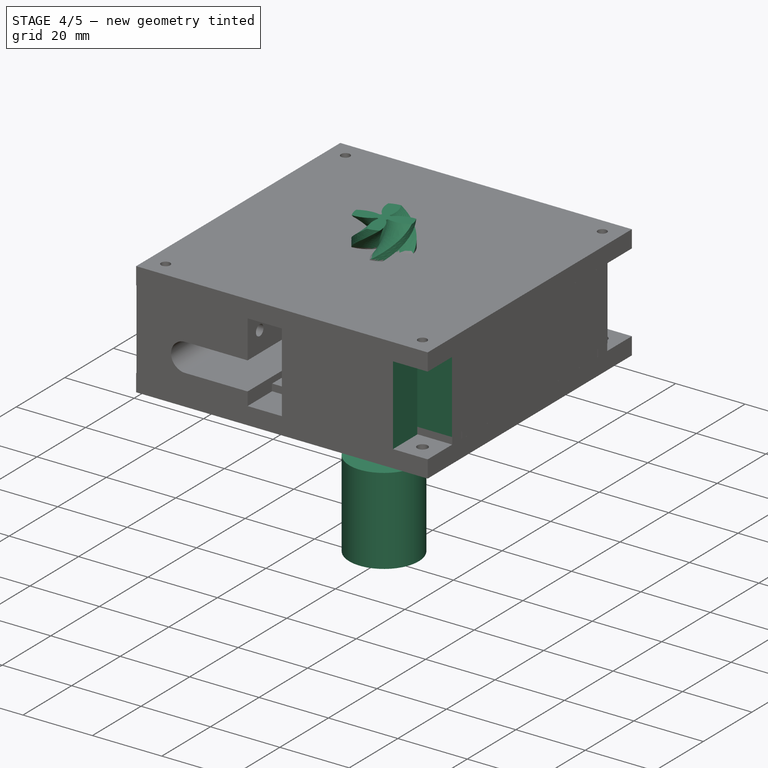
[diagram: stage 4 of 5 — iso view after this stage's code; geometry added in this stage tinted green]
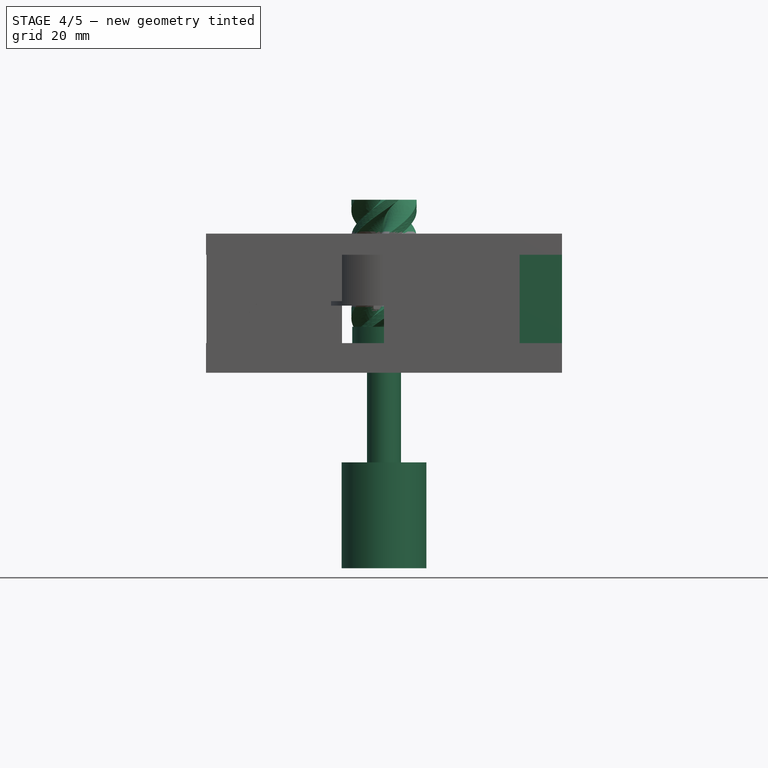
[diagram: stage 4 of 5 — front view after this stage's code; geometry added in this stage tinted green]
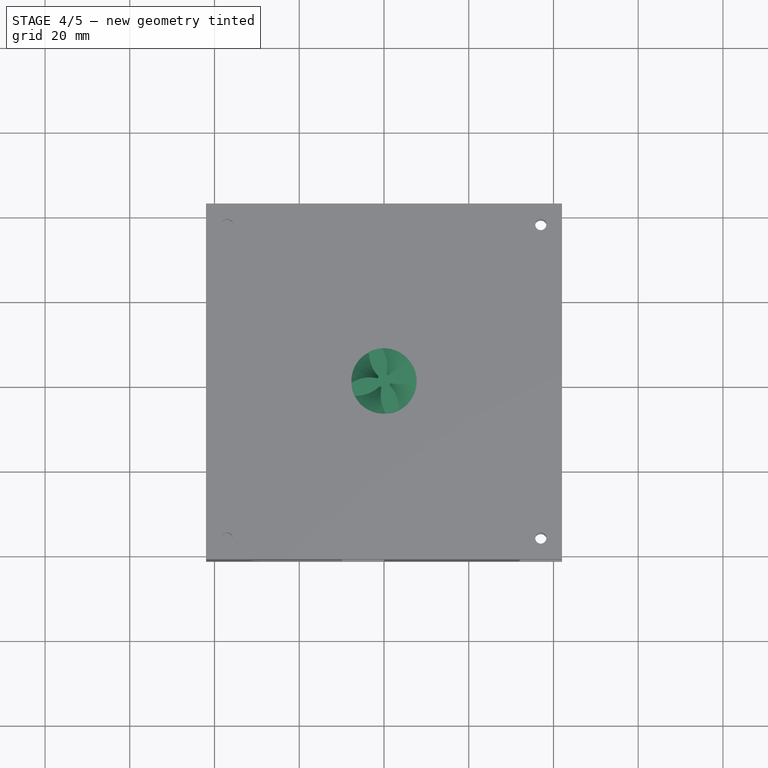
[diagram: stage 4 of 5 — top view after this stage's code; geometry added in this stage tinted green]
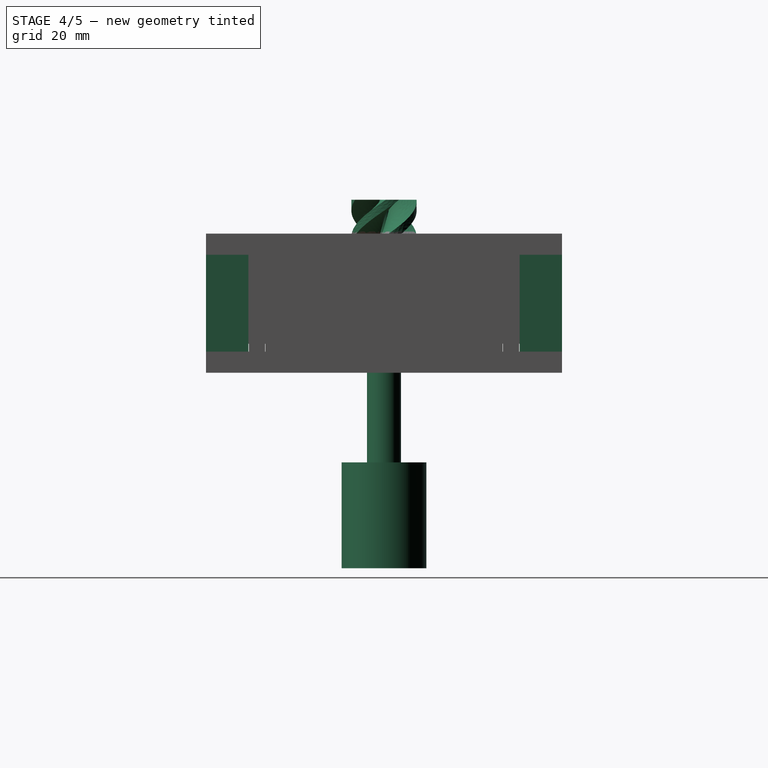
[diagram: stage 4 of 5 — right view after this stage's code; geometry added in this stage tinted green]
FEATURE [PartDesign::FeaturePython] WormGear  # WARN: FeaturePython — macro-defined, semantics opaque (R4)
  AttacherType = Attacher::AttachEngine3D
  Suppressed = false
  beta = 47.2026
  clearance = 0.25
  diameter = 10
  head = 0
  height = 30
  module = 2.7
  num_teeth = 4
  pressure_angle = 20
  reverse_pitch = false
  version = 1.3.0
FEATURE [Sketcher::SketchObject] Sketch006
  ArcFitTolerance = 1e-06
  AttachmentSupport = -> [WormGear]
  FullyConstrained = true
  MakeInternals = false
  MapMode = 5
  Placement = pos=(0,0,0) rot=(1,0,0;3.14159rad)
  sketch-geometry (1):
    g0: Circle CenterX=0 CenterY=0 CenterZ=0 NormalX=0 NormalY=0 NormalZ=1 AngleXU=0 Radius=7.5
  constraints (2):
    c: Diameter(g0) = 15
    c: Coincident(g0,g-1)
FEATURE [PartDesign::Pad] Pad003
  BaseFeature = -> WormGear
  Direction = (0,0,-1)
  Length = 5
  Length2 = 10
  Profile = -> Sketch006
  ReferenceAxis = -> Sketch006 [N_Axis]
  Refine = true
  Suppressed = false
  Type = 0
FEATURE [Sketcher::SketchObject] Sketch007
  ArcFitTolerance = 1e-06
  AttachmentSupport = -> [Pad003]
  FullyConstrained = true
  MakeInternals = false
  MapMode = 5
  Placement = pos=(0,0,-5) rot=(1,0,0;3.14159rad)
  sketch-geometry (1):
    g0: Circle CenterX=0 CenterY=0 CenterZ=0 NormalX=0 NormalY=0 NormalZ=1 AngleXU=0 Radius=4
  constraints (2):
    c: Diameter(g0) = 8
    c: Coincident(g0,g-1)
FEATURE [PartDesign::Pad] Pad004
  BaseFeature = -> Pad003
  Direction = (0,0,-1)
  Length = 27
  Length2 = 10
  Profile = -> Sketch007
  ReferenceAxis = -> Sketch007 [N_Axis]
  Refine = true
  Suppressed = false
  Type = 0
FEATURE [Sketcher::SketchObject] Sketch008
  ArcFitTolerance = 1e-06
  AttachmentSupport = -> [Pad004]
  FullyConstrained = true
  MakeInternals = false
  MapMode = 5
  Placement = pos=(0,0,-32) rot=(1,0,0;3.14159rad)
  sketch-geometry (1):
    g0: Circle CenterX=0 CenterY=0 CenterZ=0 NormalX=0 NormalY=0 NormalZ=1 AngleXU=0 Radius=10
  constraints (2):
    c: Diameter(g0) = 20
    c: Coincident(g0,g-1)
FEATURE [PartDesign::Pad] Pad005
  BaseFeature = -> Pad004
  Direction = (0,0,-1)
  Length = 25
  Length2 = 10
  Profile = -> Sketch008
  ReferenceAxis = -> Sketch008 [N_Axis]
  Refine = true
  Suppressed = false
  Type = 0
FEATURE [Sketcher::SketchObject] Sketch021
  ArcFitTolerance = 1e-06
  AttachmentSupport = -> [Pad009]
  ExternalGeometry = -> [Pad009]
  FullyConstrained = true
  MakeInternals = false
  MapMode = 5
  Placement = pos=(0.000763076,0.000154743,17.0005) rot=(-0.577343,-0.577338,0.577369;2.09437rad)
  sketch-geometry (10):
    g0: LineSegment [constr] StartX=-42 StartY=0 StartZ=0 EndX=-37 EndY=0 EndZ=0
    g1: LineSegment [constr] StartX=-37 StartY=0 StartZ=0 EndX=-37 EndY=5 EndZ=0
    g2: LineSegment [constr] StartX=-37 StartY=5 StartZ=0 EndX=-42 EndY=5 EndZ=0
    g3: LineSegment [constr] StartX=-42 StartY=5 StartZ=0 EndX=-42 EndY=0 EndZ=0
    g4: LineSegment [constr] StartX=42 StartY=0 StartZ=0 EndX=42 EndY=5 EndZ=0
    g5: LineSegment [constr] StartX=42 StartY=5 StartZ=0 EndX=37 EndY=5 EndZ=0
    g6: LineSegment [constr] StartX=37 StartY=5 StartZ=0 EndX=37 EndY=0 EndZ=0
    g7: LineSegment [constr] StartX=37 StartY=0 StartZ=0 EndX=42 EndY=0 EndZ=0
    g8: Circle CenterX=-37 CenterY=5 CenterZ=0 NormalX=0 NormalY=0 NormalZ=1 AngleXU=0 Radius=1.275
    g9: Circle CenterX=37 CenterY=5 CenterZ=0 NormalX=0 NormalY=0 NormalZ=1 AngleXU=0 Radius=1.275
  constraints (26):
    c: Coincident(g0,g1)
    c: Coincident(g1,g2)
    c: Coincident(g2,g3)
    c: Coincident(g3,g0)
    c: Horizontal(g0)
    c: Horizontal(g2)
    c: Vertical(g1)
    c: Vertical(g3)
    c: Distance(g1,g3) = 5
    c: Distance(g0,g2) = 5
    c: Coincident(g0,g-4)
    c: Coincident(g4,g5)
    c: Coincident(g5,g6)
    c: Coincident(g6,g7)
    c: Coincident(g7,g4)
    c: Vertical(g4)
    c: Vertical(g6)
    c: Horizontal(g5)
    c: Horizontal(g7)
    c: Distance(g4,g6) = 5
    c: Distance(g5,g7) = 5
    c: Coincident(g4,g-6)
    c: Diameter(g8) = 2.55
    c: Coincident(g8,g1)
    c: Diameter(g9) = 2.55
    c: Coincident(g9,g5)
FEATURE [PartDesign::Pocket] Pocket006
  BaseFeature = -> Pad009
  Direction = (1,-4.08574e-10,-4.48856e-05)
  Length = 15
  Length2 = 5
  Placement = pos=(0.000763076,0.000154743,17.0005) rot=(1,0,-2.2e-05;3.14158rad)
  Profile = -> Sketch021
  ReferenceAxis = -> Sketch021 [N_Axis]
  Refine = true
  Suppressed = false
  Type = 0
FEATURE [Sketcher::SketchObject] Sketch022
  ArcFitTolerance = 1e-06
  AttachmentSupport = -> [Pocket006]
  ExternalGeometry = -> [Pocket006]
  FullyConstrained = true
  MakeInternals = false
  MapMode = 5
  Placement = pos=(-0.00026256,-5.32442e-05,-5.84954) rot=(1,0,-2.2e-05;3.14158rad)
  sketch-geometry (10):
    g0: LineSegment [constr] StartX=42 StartY=-42 StartZ=0 EndX=42 EndY=-32 EndZ=0
    g1: LineSegment [constr] StartX=42 StartY=42 StartZ=0 EndX=42 EndY=32 EndZ=0
    g2: LineSegment StartX=42 StartY=32 StartZ=0 EndX=0 EndY=32 EndZ=0
    g3: LineSegment StartX=0 StartY=32 StartZ=0 EndX=0 EndY=28 EndZ=0
    g4: LineSegment StartX=0 StartY=28 StartZ=0 EndX=42 EndY=28 EndZ=0
    g5: LineSegment StartX=42 StartY=28 StartZ=0 EndX=42 EndY=32 EndZ=0
    g6: LineSegment StartX=42 StartY=-32 StartZ=0 EndX=42 EndY=-28 EndZ=0
    g7: LineSegment StartX=42 StartY=-28 StartZ=0 EndX=0 EndY=-28 EndZ=0
    g8: LineSegment StartX=0 StartY=-28 StartZ=0 EndX=0 EndY=-32 EndZ=0
    g9: LineSegment StartX=0 StartY=-32 StartZ=0 EndX=42 EndY=-32 EndZ=0
  constraints (28):
    c: Distance(g0) = 10
    c: Coincident(g0,g-5)
    c: PointOnObject(g0,g-3)
    c: Distance(g1) = 10
    c: Coincident(g1,g-4)
    c: PointOnObject(g1,g-3)
    c: Coincident(g2,g3)
    c: Coincident(g3,g4)
    c: Coincident(g4,g5)
    c: Coincident(g5,g2)
    c: Horizontal(g2)
    c: Horizontal(g4)
    c: Vertical(g3)
    c: Vertical(g5)
    c: Distance(g2,g4) = 4
    c: Coincident(g2,g1)
    c: PointOnObject(g3,g-6)
    c: Coincident(g6,g7)
    c: Coincident(g7,g8)
    c: Coincident(g8,g9)
    c: Coincident(g9,g6)
    c: Vertical(g6)
    c: Vertical(g8)
    c: Horizontal(g7)
    c: Horizontal(g9)
    c: Distance(g7,g9) = 4
    c: Coincident(g6,g0)
    c: PointOnObject(g7,g-7)
FEATURE [PartDesign::Pocket] Pocket007
  BaseFeature = -> Pocket006
  Direction = (4.48856e-05,9.10228e-06,1)
  Length = 2
  Length2 = 5
  Placement = pos=(0.000763076,0.000154743,17.0005) rot=(1,0,-2.2e-05;3.14158rad)
  Profile = -> Sketch022
  ReferenceAxis = -> Sketch022 [N_Axis]
  Refine = true
  Suppressed = false
  Type = 0
FEATURE [Sketcher::SketchObject] Sketch027
  ArcFitTolerance = 1e-06
  AttachmentSupport = -> [Pocket007]
  ExternalGeometry = -> [Pocket007]
  FullyConstrained = true
  MakeInternals = false
  MapMode = 5
  Placement = pos=(-0.00026256,-5.32442e-05,-5.84954) rot=(1,0,-2.2e-05;3.14158rad)
  sketch-geometry (8):
    g0: GeomPoint X=42 Y=0 Z=0
    g1: LineSegment [constr] StartX=32 StartY=-12.5 StartZ=0 EndX=52 EndY=-12.5 EndZ=0
    g2: LineSegment [constr] StartX=52 StartY=-12.5 StartZ=0 EndX=52 EndY=12.5 EndZ=0
    g3: LineSegment [constr] StartX=52 StartY=12.5 StartZ=0 EndX=32 EndY=12.5 EndZ=0
    g4: LineSegment [constr] StartX=32 StartY=12.5 StartZ=0 EndX=32 EndY=-12.5 EndZ=0
    g5: GeomPoint [constr] X=42 Y=0 Z=0
    g6: Circle CenterX=32 CenterY=12.5 CenterZ=0 NormalX=0 NormalY=0 NormalZ=1 AngleXU=0 Radius=1.3
    g7: Circle CenterX=32 CenterY=-12.5 CenterZ=0 NormalX=0 NormalY=0 NormalZ=1 AngleXU=0 Radius=1.3
  constraints (17):
    c: Symmetric(g-3,g-3,g0)
    c: Coincident(g1,g2)
    c: Coincident(g2,g3)
    c: Coincident(g3,g4)
    c: Coincident(g4,g1)
    c: Horizontal(g1)
    c: Horizontal(g3)
    c: Vertical(g2)
    c: Vertical(g4)
    c: Symmetric(g3,g1,g5)
    c: Distance(g2,g4) = 20
    c: Distance(g1,g3) = 25
    c: Coincident(g5,g0)
    c: Diameter(g6) = 2.6
    c: Coincident(g6,g3)
    c: Diameter(g7) = 2.6
    c: Coincident(g7,g1)
FEATURE [PartDesign::Pocket] Pocket011
  BaseFeature = -> Pocket007
  Direction = (4.48856e-05,9.10228e-06,1)
  Length = 10
  Length2 = 5
  Placement = pos=(0.000763076,0.000154743,17.0005) rot=(1,0,-2.2e-05;3.14158rad)
  Profile = -> Sketch027
  ReferenceAxis = -> Sketch027 [N_Axis]
  Refine = true
  Suppressed = false
  Type = 0
FEATURE [Sketcher::SketchObject] Sketch028
  ArcFitTolerance = 1e-06
  AttachmentSupport = -> [Pocket011]
  ExternalGeometry = -> [Pocket011]
  FullyConstrained = true
  MakeInternals = false
  MapMode = 5
  Placement = pos=(-0.00026256,-5.32442e-05,-5.84954) rot=(1,0,-2.2e-05;3.14158rad)
  sketch-geometry (8):
    g0: LineSegment StartX=42 StartY=-42 StartZ=0 EndX=42 EndY=-32 EndZ=0
    g1: LineSegment StartX=42 StartY=-32 StartZ=0 EndX=32 EndY=-32 EndZ=0
    g2: LineSegment StartX=32 StartY=-32 StartZ=0 EndX=32 EndY=-42 EndZ=0
    g3: LineSegment StartX=32 StartY=-42 StartZ=0 EndX=42 EndY=-42 EndZ=0
    g4: LineSegment StartX=42 StartY=42 StartZ=0 EndX=32 EndY=42 EndZ=0
    g5: LineSegment StartX=32 StartY=42 StartZ=0 EndX=32 EndY=32 EndZ=0
    g6: LineSegment StartX=32 StartY=32 StartZ=0 EndX=42 EndY=32 EndZ=0
    g7: LineSegment StartX=42 StartY=32 StartZ=0 EndX=42 EndY=42 EndZ=0
  constraints (22):
    c: Coincident(g0,g1)
    c: Coincident(g1,g2)
    c: Coincident(g2,g3)
    c: Coincident(g3,g0)
    c: Vertical(g0)
    c: Vertical(g2)
    c: Horizontal(g1)
    c: Horizontal(g3)
    c: Distance(g0,g2) = 10
    c: Coincident(g0,g-3)
    c: PointOnObject(g1,g-7)
    c: Coincident(g4,g5)
    c: Coincident(g5,g6)
    c: Coincident(g6,g7)
    c: Coincident(g7,g4)
    c: Horizontal(g4)
    c: Horizontal(g6)
    c: Vertical(g5)
    c: Vertical(g7)
    c: Distance(g5,g7) = 10
    c: Coincident(g4,g-4)
    c: PointOnObject(g5,g-8)
FEATURE [PartDesign::Pocket] Pocket012
  BaseFeature = -> Pocket011
  Direction = (4.48856e-05,9.10228e-06,1)
  Length = 5
  Length2 = 5
  Placement = pos=(0.000763076,0.000154743,17.0005) rot=(1,0,-2.2e-05;3.14158rad)
  Profile = -> Sketch028
  ReferenceAxis = -> Sketch028 [N_Axis]
  Refine = true
  Suppressed = false
  Type = 1
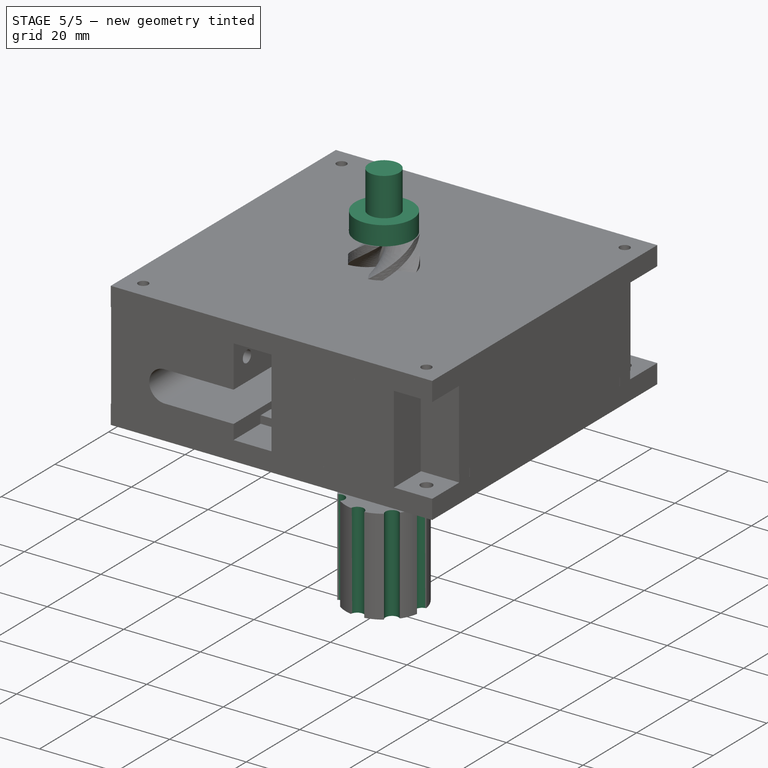
[diagram: stage 5 of 5 — iso view after this stage's code; geometry added in this stage tinted green]
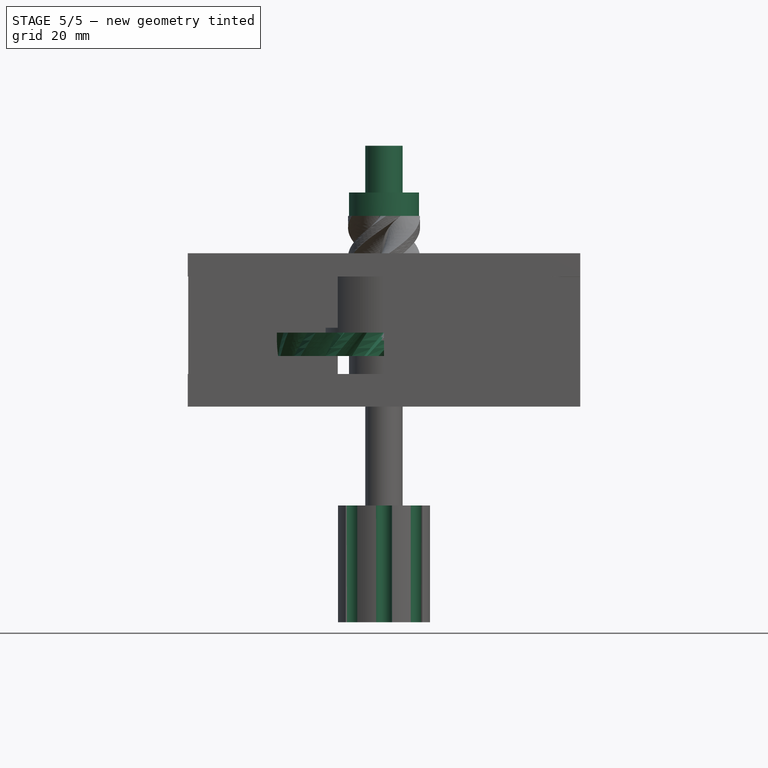
[diagram: stage 5 of 5 — front view after this stage's code; geometry added in this stage tinted green]
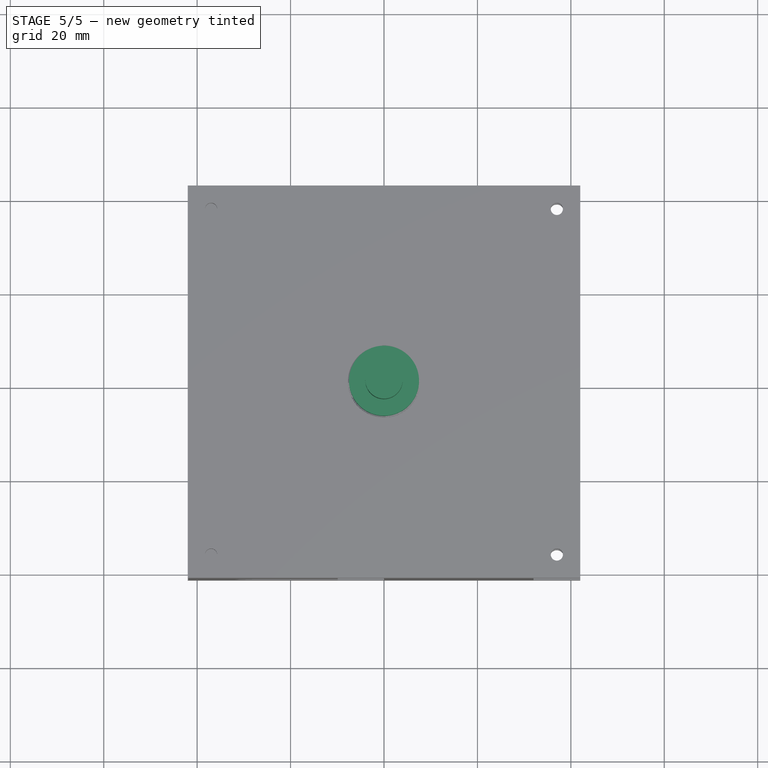
[diagram: stage 5 of 5 — top view after this stage's code; geometry added in this stage tinted green]
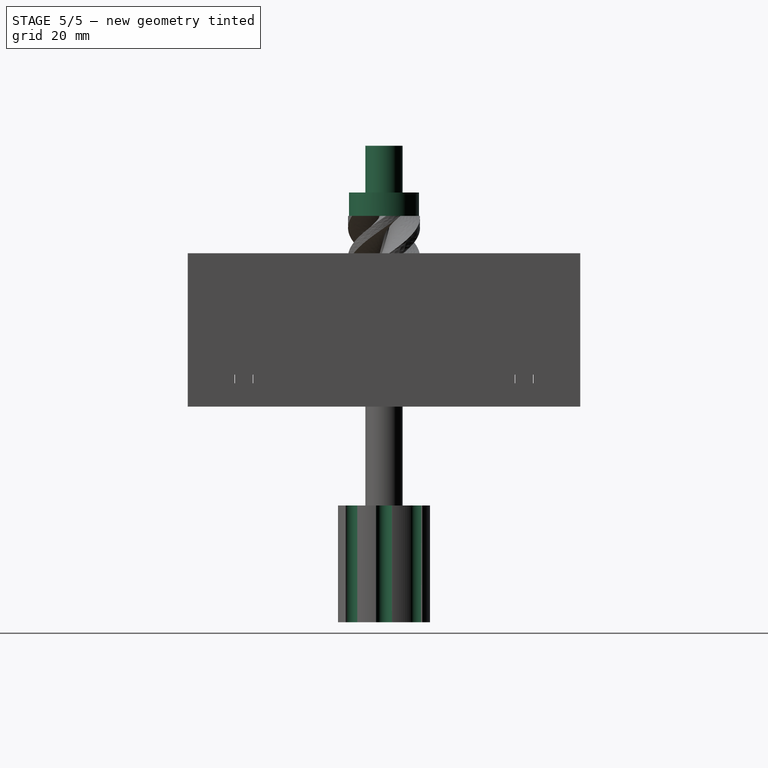
[diagram: stage 5 of 5 — right view after this stage's code; geometry added in this stage tinted green]
FEATURE [PartDesign::FeaturePython] CycloidGear  # WARN: FeaturePython — macro-defined, semantics opaque (R4)
  AttacherType = Attacher::AttachEngine3D
  Suppressed = false
  angular_backlash = 0
  backlash = 0
  beta = 39.01
  clearance = 0.25
  double_helix = false
  dw = 40.5
  head = 0
  head_fillet = 0
  height = 5
  inner_diameter = 7.5
  module = 2.7
  num_teeth = 15
  numpoints = 20
  outer_diameter = 7.5
  root_fillet = 0
  version = 1.3.0
  expr: angular_backlash = backlash / dw * 360 ° / pi
  expr: dw = num_teeth * module
  expr: inner_diameter = num_teeth / 2
FEATURE [Sketcher::SketchObject] Sketch
  ArcFitTolerance = 1e-06
  AttachmentSupport = -> [CycloidGear]
  FullyConstrained = true
  MakeInternals = false
  MapMode = 5
  Placement = pos=(0.000224449,4.55156e-05,5.00046) rot=(-0.198743,0.980052,-4e-06;4.6e-05rad)
  sketch-geometry (4):
    g0: LineSegment StartX=5 StartY=0 StartZ=0 EndX=-2.5 EndY=4.33013 EndZ=0
    g1: LineSegment StartX=-2.5 StartY=4.33013 StartZ=0 EndX=-2.5 EndY=-4.33013 EndZ=0
    g2: LineSegment StartX=-2.5 StartY=-4.33013 StartZ=0 EndX=5 EndY=0 EndZ=0
    g3: Circle [constr] CenterX=0 CenterY=0 CenterZ=0 NormalX=0 NormalY=0 NormalZ=1 AngleXU=0 Radius=5
  constraints (11):
    c: Coincident(g0,g1)
    c: Coincident(g1,g2)
    c: Coincident(g2,g0)
    c: Equal(g0,g1)
    c: Equal(g0,g2)
    c: PointOnObject(g0,g3)
    c: PointOnObject(g1,g3)
    c: PointOnObject(g2,g3)
    c: Radius(g3) = 5
    c: Coincident(g3,g-1)
    c: PointOnObject(g2,g-1)
FEATURE [PartDesign::Pocket] Pocket
  BaseFeature = -> CycloidGear
  Direction = (-4.48856e-05,-9.10228e-06,-1)
  Length = 1
  Length2 = 5
  Profile = -> Sketch
  ReferenceAxis = -> Sketch [N_Axis]
  Refine = true
  Suppressed = false
  Type = 0
FEATURE [PartDesign::Chamfer] Chamfer
  Angle = 45
  Base = -> Pocket [Edge127,Edge125,Edge126]
  BaseFeature = -> Pocket
  ChamferType = 0
  FlipDirection = false
  Refine = true
  Size = 0.3
  Size2 = 1
  SupportTransform = false
  Suppressed = false
  UseAllEdges = false
FEATURE [Sketcher::SketchObject] Sketch001
  ArcFitTolerance = 1e-06
  AttachmentSupport = -> [Chamfer]
  FullyConstrained = true
  MakeInternals = false
  MapMode = 5
  Placement = pos=(0.000224449,4.55156e-05,5.00046) rot=(-0.198743,0.980052,-4e-06;4.6e-05rad)
  sketch-geometry (4):
    g0: LineSegment [constr] StartX=0 StartY=0 StartZ=0 EndX=0 EndY=7 EndZ=0
    g1: LineSegment [constr] StartX=0 StartY=0 StartZ=0 EndX=0 EndY=-7 EndZ=0
    g2: Circle CenterX=0 CenterY=-7 CenterZ=0 NormalX=0 NormalY=0 NormalZ=1 AngleXU=0 Radius=1.5
    g3: Circle CenterX=0 CenterY=7 CenterZ=0 NormalX=0 NormalY=0 NormalZ=1 AngleXU=0 Radius=1.5
  constraints (10):
    c: Distance(g0) = 7
    c: Coincident(g0,g-1)
    c: PointOnObject(g0,g-2)
    c: Distance(g1) = 7
    c: Coincident(g1,g0)
    c: PointOnObject(g1,g-2)
    c: Diameter(g2) = 3
    c: Coincident(g2,g1)
    c: Diameter(g3) = 3
    c: Coincident(g3,g0)
FEATURE [PartDesign::Pocket] Pocket001
  BaseFeature = -> Chamfer
  Direction = (-4.48856e-05,-9.10228e-06,-1)
  Length = 7
  Length2 = 5
  Profile = -> Sketch001
  ReferenceAxis = -> Sketch001 [N_Axis]
  Refine = true
  Suppressed = false
  Type = 0
FEATURE [Sketcher::SketchObject] Sketch002
  ArcFitTolerance = 1e-06
  AttachmentSupport = -> [Pocket001]
  ExternalGeometry = -> [Pocket001]
  FullyConstrained = true
  MakeInternals = false
  MapMode = 5
  Placement = pos=(0,0,0) rot=(1,0,0;3.14159rad)
  sketch-geometry (2):
    g0: Circle CenterX=-2.85993e-09 CenterY=7 CenterZ=0 NormalX=0 NormalY=0 NormalZ=1 AngleXU=0 Radius=3
    g1: Circle CenterX=2.85993e-09 CenterY=-7 CenterZ=0 NormalX=0 NormalY=0 NormalZ=1 AngleXU=0 Radius=3
  constraints (4):
    c: Diameter(g0) = 6
    c: Coincident(g0,g-3)
    c: Diameter(g1) = 6
    c: Coincident(g1,g-4)
FEATURE [PartDesign::Pocket] Pocket002
  BaseFeature = -> Pocket001
  Direction = (0,0,1)
  Length = 3.5
  Length2 = 5
  Profile = -> Sketch002
  ReferenceAxis = -> Sketch002 [N_Axis]
  Refine = true
  Suppressed = false
  Type = 0
FEATURE [Sketcher::SketchObject] Sketch009
  ArcFitTolerance = 1e-06
  AttachmentSupport = -> [Pad005]
  ExternalGeometry = -> [Pad005]
  FullyConstrained = true
  MakeInternals = false
  MapMode = 5
  Placement = pos=(0,0,-57) rot=(1,0,0;3.14159rad)
  sketch-geometry (16):
    g0: LineSegment [constr] StartX=0 StartY=0 StartZ=0 EndX=-10 EndY=0 EndZ=0
    g1: LineSegment [constr] StartX=0 StartY=0 StartZ=0 EndX=0 EndY=10 EndZ=0
    g2: LineSegment [constr] StartX=0 StartY=0 StartZ=0 EndX=10 EndY=0 EndZ=0
    g3: LineSegment [constr] StartX=0 StartY=0 StartZ=0 EndX=0 EndY=-10 EndZ=0
    g4: LineSegment [constr] StartX=0 StartY=0 StartZ=0 EndX=-7.07106 EndY=7.07107 EndZ=0
    g5: LineSegment [constr] StartX=0 StartY=0 StartZ=0 EndX=7.07107 EndY=7.07107 EndZ=0
    g6: LineSegment [constr] StartX=0 StartY=0 StartZ=0 EndX=7.07107 EndY=-7.07107 EndZ=0
    g7: LineSegment [constr] StartX=0 StartY=0 StartZ=0 EndX=-7.07106 EndY=-7.07107 EndZ=0
    g8: Circle CenterX=-10 CenterY=0 CenterZ=0 NormalX=0 NormalY=0 NormalZ=1 AngleXU=0 Radius=1.75
    g9: Circle CenterX=-7.07106 CenterY=7.07107 CenterZ=0 NormalX=0 NormalY=0 NormalZ=1 AngleXU=0 Radius=1.75
    g10: Circle CenterX=0 CenterY=10 CenterZ=0 NormalX=0 NormalY=0 NormalZ=1 AngleXU=0 Radius=1.75
    g11: Circle CenterX=7.07107 CenterY=7.07107 CenterZ=0 NormalX=0 NormalY=0 NormalZ=1 AngleXU=0 Radius=1.75
    g12: Circle CenterX=10 CenterY=0 CenterZ=0 NormalX=0 NormalY=0 NormalZ=1 AngleXU=0 Radius=1.75
    g13: Circle CenterX=7.07107 CenterY=-7.07107 CenterZ=0 NormalX=0 NormalY=0 NormalZ=1 AngleXU=0 Radius=1.75
    g14: Circle CenterX=0 CenterY=-10 CenterZ=0 NormalX=0 NormalY=0 NormalZ=1 AngleXU=0 Radius=1.75
    g15: Circle CenterX=-7.07106 CenterY=-7.07107 CenterZ=0 NormalX=0 NormalY=0 NormalZ=1 AngleXU=0 Radius=1.75
  constraints (40):
    c: Coincident(g0,g-1)
    c: PointOnObject(g0,g-3)
    c: Horizontal(g0)
    c: Coincident(g1,g0)
    c: PointOnObject(g1,g-3)
    c: Vertical(g1)
    c: Coincident(g2,g0)
    c: PointOnObject(g2,g-3)
    c: Horizontal(g2)
    c: Coincident(g3,g0)
    c: PointOnObject(g3,g-3)
    c: Vertical(g3)
    c: Angle(g-1,g4) = 2.35619
    c: Coincident(g4,g0)
    c: PointOnObject(g4,g-3)
    c: Angle(g-1,g5) = 0.785398
    c: Coincident(g5,g0)
    c: PointOnObject(g5,g-3)
    c: Angle(g-1,g6) = -0.785398
    c: Coincident(g6,g0)
    c: PointOnObject(g6,g-3)
    c: Angle(g-1,g7) = -2.35619
    c: Coincident(g7,g0)
    c: PointOnObject(g7,g-3)
    c: Diameter(g8) = 3.5
    c: Coincident(g8,g0)
    c: Diameter(g9) = 3.5
    c: Coincident(g9,g4)
    c: Diameter(g10) = 3.5
    c: Coincident(g10,g1)
    c: Diameter(g11) = 3.5
    c: Coincident(g11,g5)
    c: Diameter(g12) = 3.5
    c: Coincident(g12,g2)
    c: Diameter(g13) = 3.5
    c: Coincident(g13,g6)
    c: Diameter(g14) = 3.5
    c: Coincident(g14,g3)
    c: Diameter(g15) = 3.5
    c: Coincident(g15,g7)
FEATURE [PartDesign::Pocket] Pocket003
  BaseFeature = -> Pad005
  Direction = (0,0,1)
  Length = 25
  Length2 = 5
  Profile = -> Sketch009
  ReferenceAxis = -> Sketch009 [N_Axis]
  Refine = true
  Suppressed = false
  Type = 0
FEATURE [Sketcher::SketchObject] Sketch010
  ArcFitTolerance = 1e-06
  AttachmentSupport = -> [Pocket003]
  FullyConstrained = true
  MakeInternals = false
  MapMode = 5
  Placement = pos=(-0.000610603,0.000543847,29.9997) rot=(-0.665107,-0.746749,7e-06;2.7e-05rad)
  sketch-geometry (1):
    g0: Circle CenterX=0 CenterY=0 CenterZ=0 NormalX=0 NormalY=0 NormalZ=1 AngleXU=0 Radius=7.5
  constraints (2):
    c: Diameter(g0) = 15
    c: Coincident(g0,g-1)
FEATURE [PartDesign::Pad] Pad006
  BaseFeature = -> Pocket003
  Direction = (-2.03536e-05,1.81284e-05,1)
  Length = 5
  Length2 = 10
  Profile = -> Sketch010
  ReferenceAxis = -> Sketch010 [N_Axis]
  Refine = true
  Suppressed = false
  Type = 0
FEATURE [Sketcher::SketchObject] Sketch011
  ArcFitTolerance = 1e-06
  AttachmentSupport = -> [Pad006]
  FullyConstrained = true
  MakeInternals = false
  MapMode = 5
  Placement = pos=(-0.000712371,0.000634489,34.9997) rot=(-0.665107,-0.746749,7e-06;2.7e-05rad)
  sketch-geometry (1):
    g0: Circle CenterX=0 CenterY=0 CenterZ=0 NormalX=0 NormalY=0 NormalZ=1 AngleXU=0 Radius=4
  constraints (2):
    c: Diameter(g0) = 8
    c: Coincident(g0,g-1)
FEATURE [PartDesign::Pad] Pad007
  BaseFeature = -> Pad006
  Direction = (-2.03536e-05,1.81284e-05,1)
  Length = 10
  Length2 = 10
  Profile = -> Sketch011
  ReferenceAxis = -> Sketch011 [N_Axis]
  Refine = true
  Suppressed = false
  Type = 0
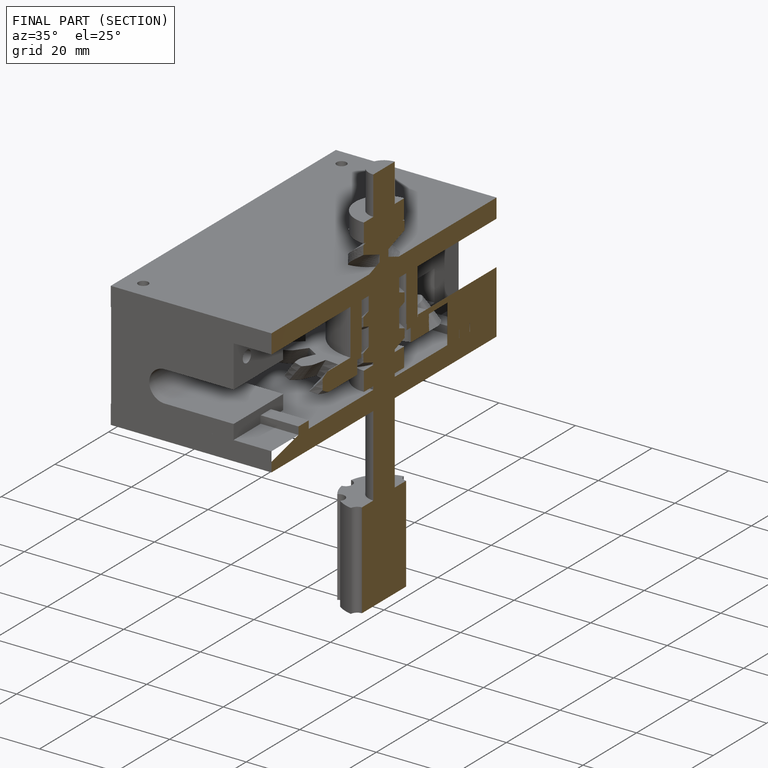
[diagram: finished part — half-section view (interior)]
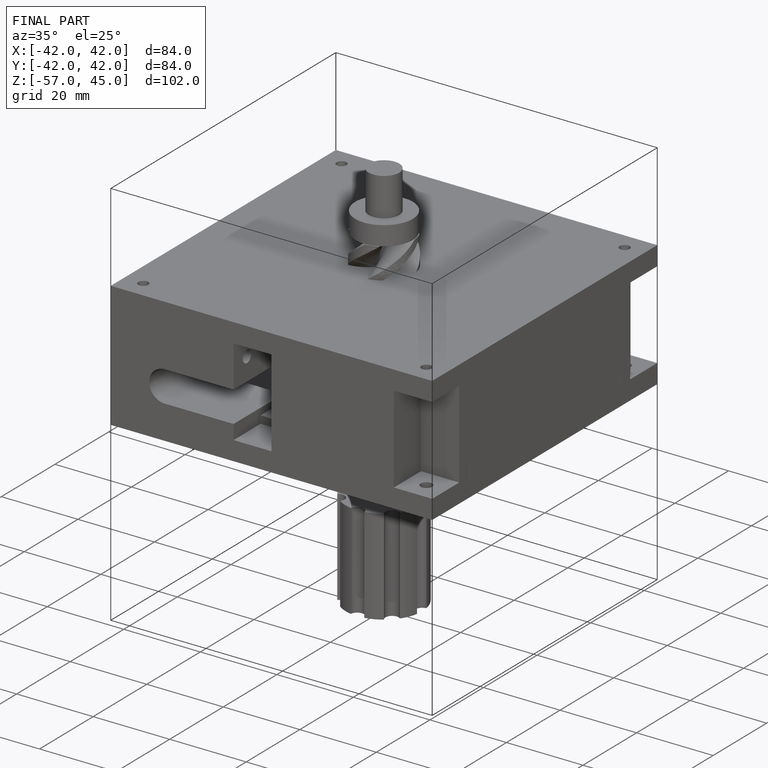
[diagram: finished part — iso view with bounding-box wireframe]
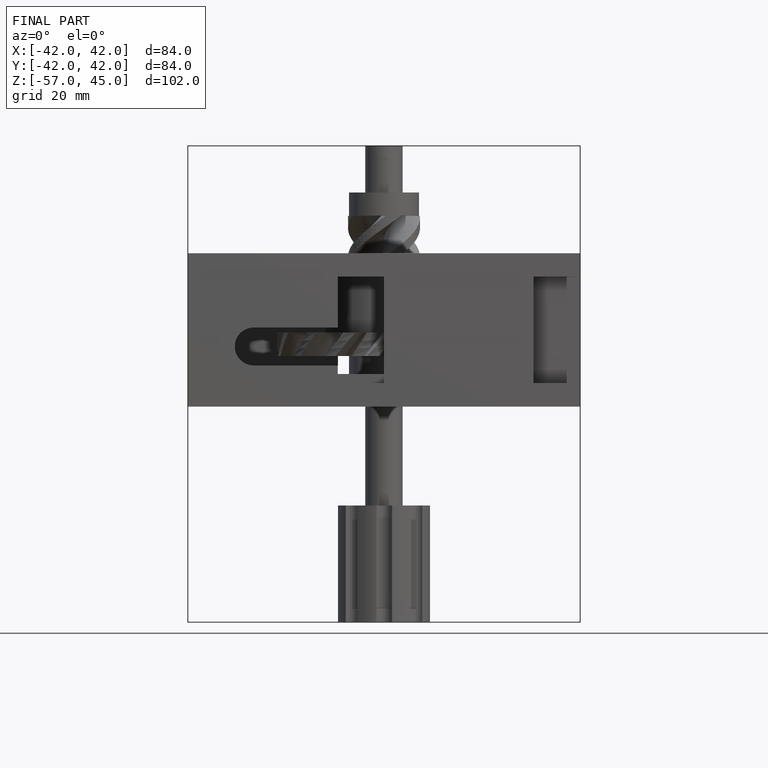
[diagram: finished part — front view with bounding-box wireframe]
